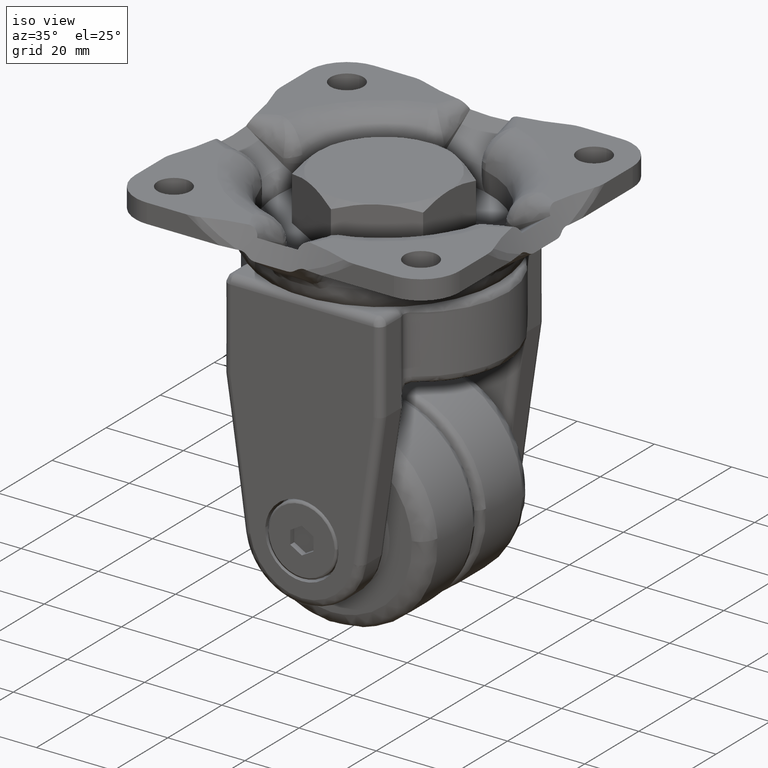
[diagram: clean part render]
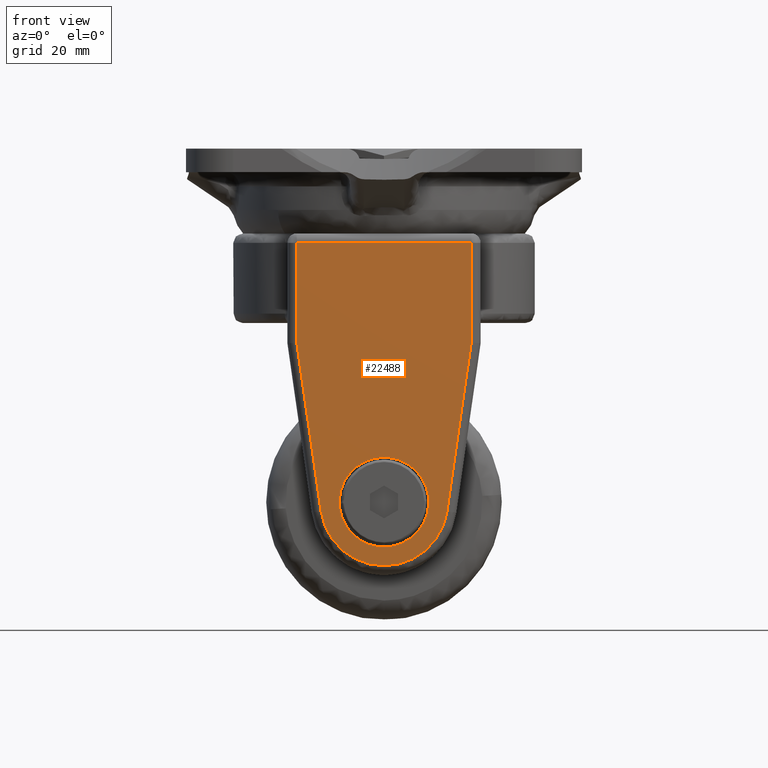
[diagram: tour spotlight — one face highlighted and labeled with its STEP entity id]
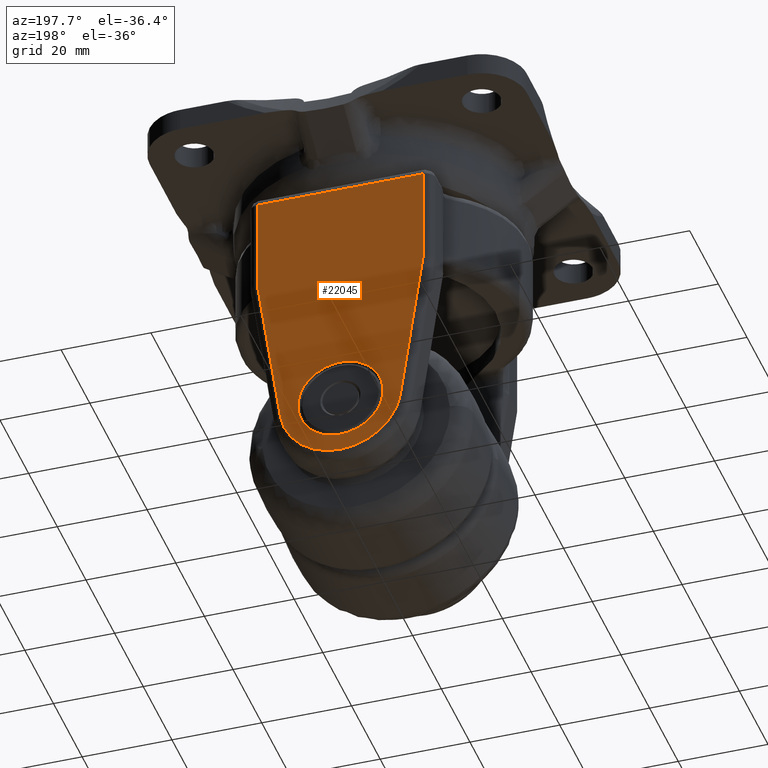
[diagram: tour spotlight — one face highlighted and labeled with its STEP entity id]
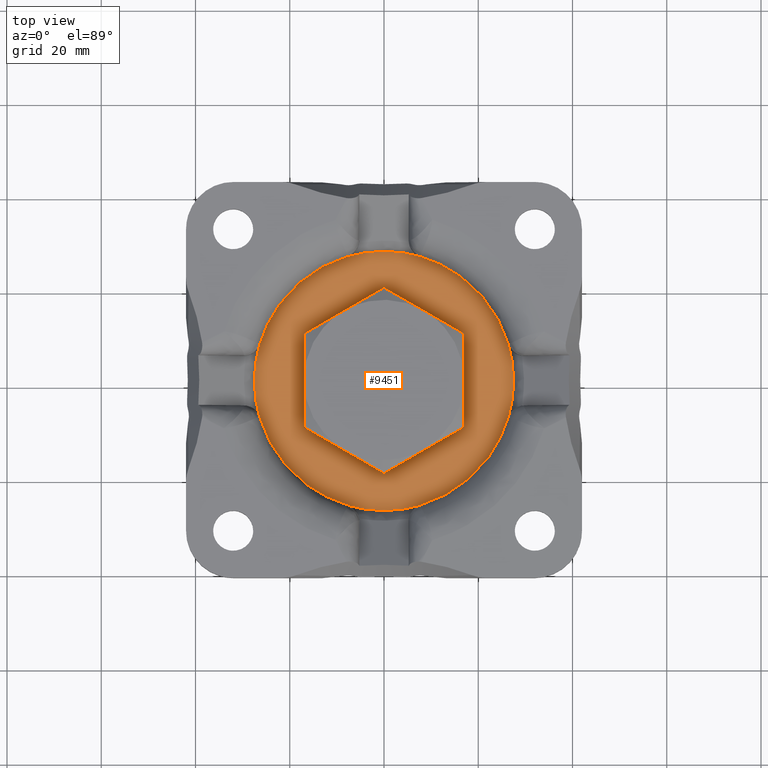
[diagram: tour spotlight — one face highlighted and labeled with its STEP entity id]
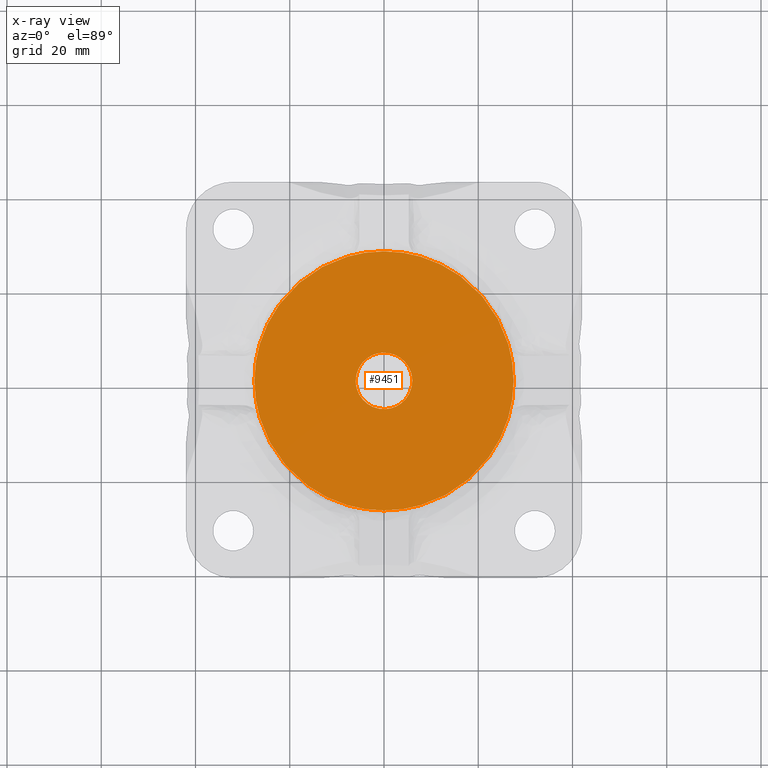
[diagram: x-ray of the same camera — body ghosted, this tour face saturated]
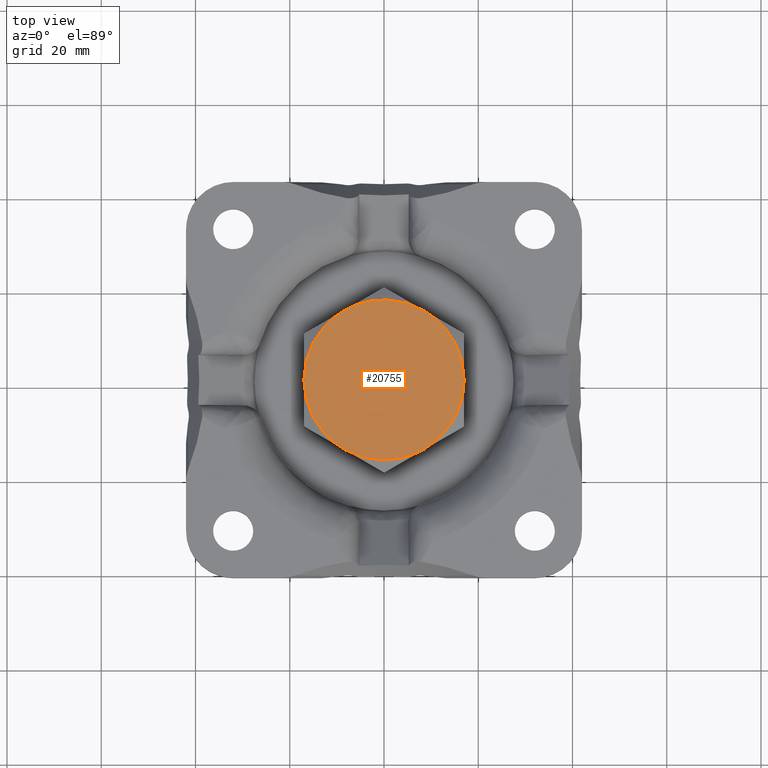
[diagram: tour spotlight — one face highlighted and labeled with its STEP entity id]
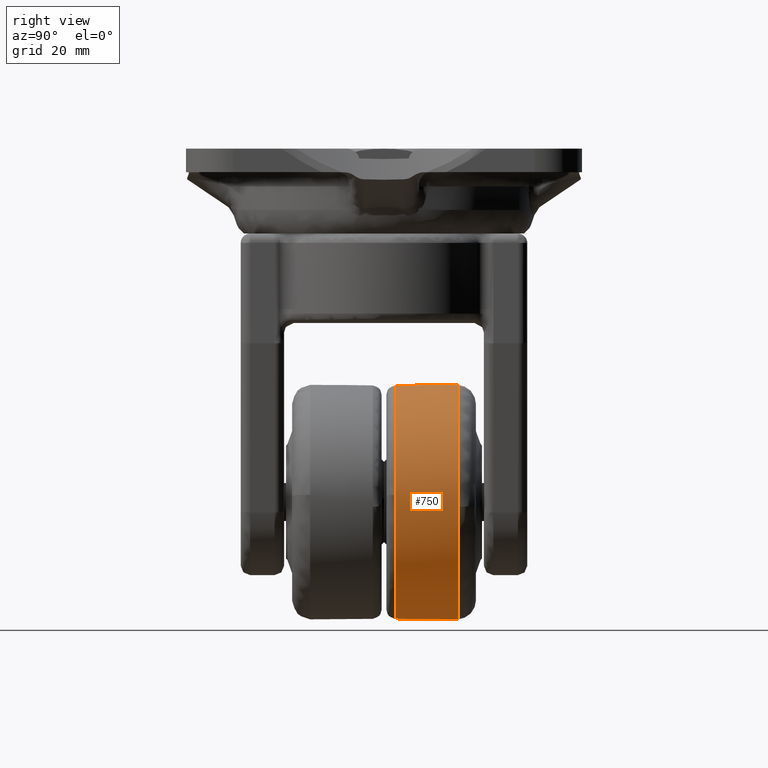
[diagram: tour spotlight — one face highlighted and labeled with its STEP entity id]
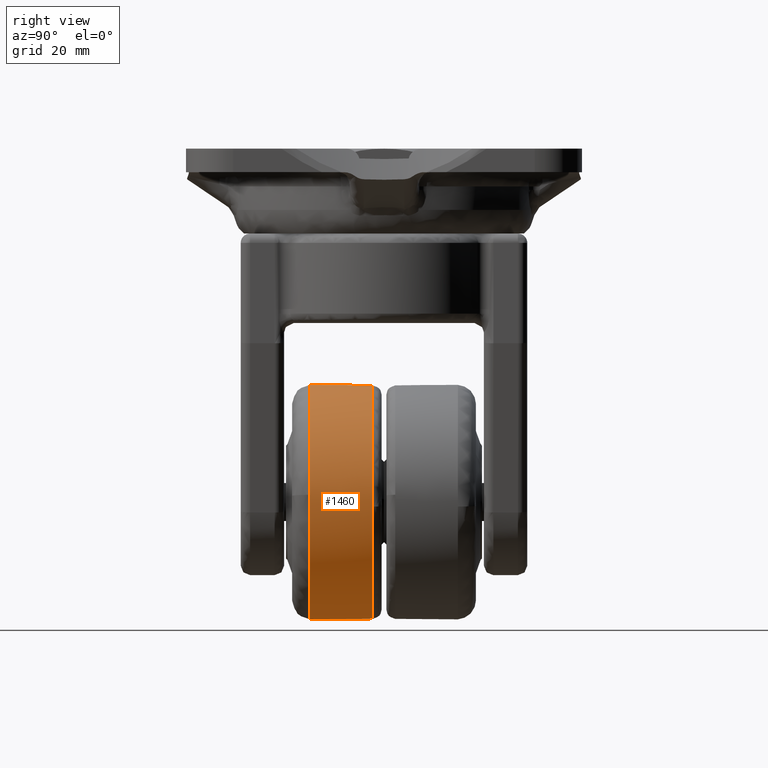
[diagram: tour spotlight — one face highlighted and labeled with its STEP entity id]
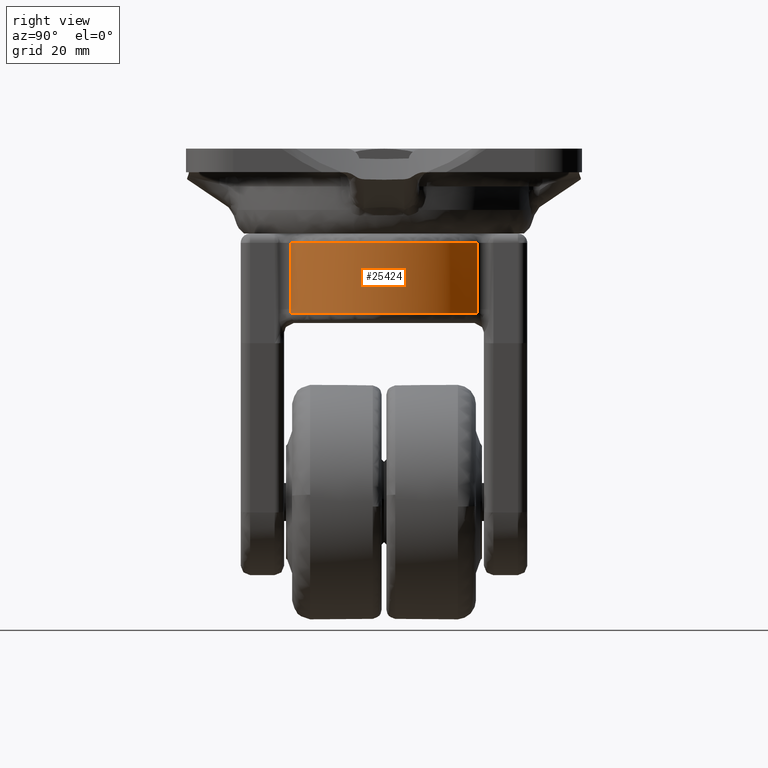
[diagram: tour spotlight — one face highlighted and labeled with its STEP entity id]
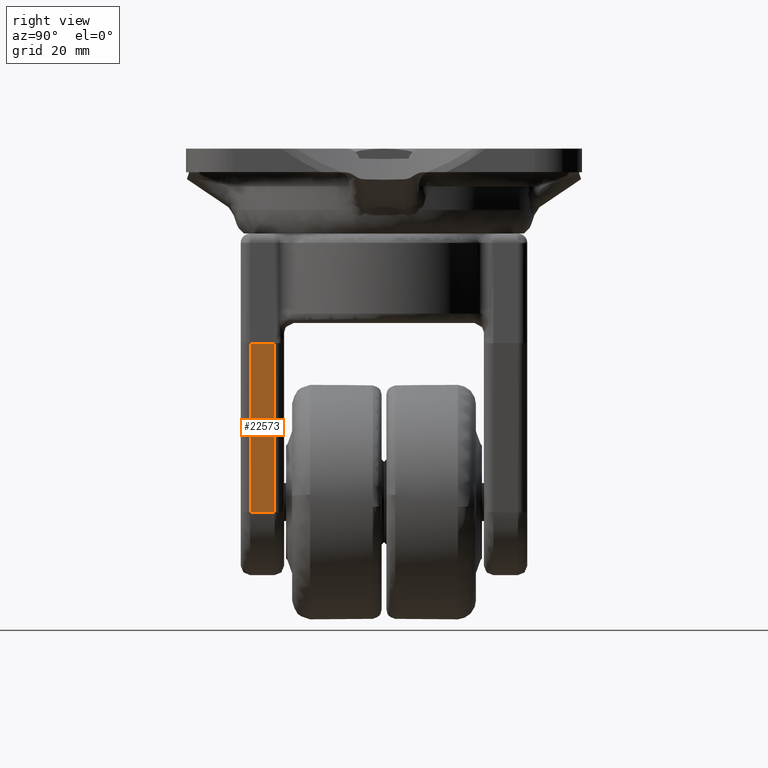
[diagram: tour spotlight — one face highlighted and labeled with its STEP entity id]
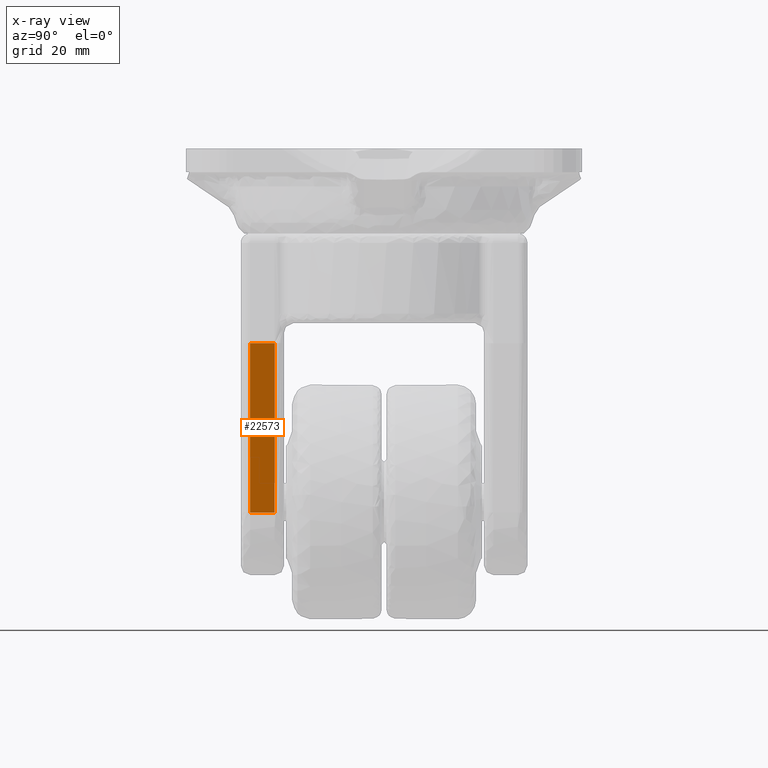
[diagram: x-ray of the same camera — body ghosted, this tour face saturated]
A machine part: a face-by-face anatomy tour. The part has 392 B-rep faces; the first image is the clean iso view, then the 8 largest visible faces are spotlighted one at a time (largest first), each with its STEP entity span.

Face 1 — front view, entity #22488. In plain terms, the highlighted face is a freeform B-spline surface patch.
Definition (entity closure, byte-faithful):
#21433=CARTESIAN_POINT('',(-9.482280584999973,-30.399999999999999,-56.420038874291961));
#21434=VERTEX_POINT('',#21433);
#21440=CARTESIAN_POINT('',(0.0,-30.399999999999999,-66.500000000000000));
#21441=VERTEX_POINT('',#21440);
#21442=CARTESIAN_POINT('',(-9.482280584999973,-30.400000000000006,-56.420038874291954));
#21443=CARTESIAN_POINT('',(-9.500000000000000,-30.399999999999999,-56.709748748599779));
#21444=CARTESIAN_POINT('',(-9.500000000000000,-30.399999999999999,-57.0));
#21445=CARTESIAN_POINT('',(-9.500000000000000,-30.400000000000002,-66.500000000000000));
#21446=CARTESIAN_POINT('',(0.0,-30.399999999999999,-66.500000000000000));
#21454=(BOUNDED_CURVE()B_SPLINE_CURVE(2,(#21442,#21443,#21444,#21445,#21446),.UNSPECIFIED.,.F.,.U.)B_SPLINE_CURVE_WITH_KNOTS((3,2,3),(0.239332962239659,0.250000000000000,0.500000000000000),.UNSPECIFIED.)CURVE()GEOMETRIC_REPRESENTATION_ITEM()RATIONAL_B_SPLINE_CURVE((0.976072041668252,0.987502787900676,1.0,0.707106781186548,1.0))REPRESENTATION_ITEM(''));
#21455=EDGE_CURVE('',#21434,#21441,#21454,.T.);
#21457=CARTESIAN_POINT('',(9.482280584999973,-30.399999999999999,-57.579961125708053));
#21458=VERTEX_POINT('',#21457);
#21459=CARTESIAN_POINT('',(0.0,-30.399999999999999,-66.500000000000000));
#21460=CARTESIAN_POINT('',(8.936707635484275,-30.400000000000006,-66.500000000000000));
#21461=CARTESIAN_POINT('',(9.482280584999973,-30.400000000000002,-57.579961125708046));
#21469=(BOUNDED_CURVE()B_SPLINE_CURVE(2,(#21459,#21460,#21461),.UNSPECIFIED.,.F.,.U.)B_SPLINE_CURVE_WITH_KNOTS((3,3),(0.500000000000000,0.739332962239659),.UNSPECIFIED.)CURVE()GEOMETRIC_REPRESENTATION_ITEM()RATIONAL_B_SPLINE_CURVE((1.0,0.719603993285871,0.976072041668253))REPRESENTATION_ITEM(''));
#21470=EDGE_CURVE('',#21441,#21458,#21469,.T.);
#21544=CARTESIAN_POINT('',(0.0,-30.399999999999999,-47.500000000000000));
#21545=VERTEX_POINT('',#21544);
#21546=CARTESIAN_POINT('',(9.482280584999973,-30.400000000000002,-57.579961125708046));
#21547=CARTESIAN_POINT('',(9.500000000000000,-30.399999999999999,-57.290251251400235));
#21548=CARTESIAN_POINT('',(9.500000000000000,-30.399999999999999,-57.0));
#21549=CARTESIAN_POINT('',(9.500000000000000,-30.400000000000002,-47.500000000000021));
#21550=CARTESIAN_POINT('',(0.0,-30.399999999999999,-47.500000000000000));
#21558=(BOUNDED_CURVE()B_SPLINE_CURVE(2,(#21546,#21547,#21548,#21549,#21550),.UNSPECIFIED.,.F.,.U.)B_SPLINE_CURVE_WITH_KNOTS((3,2,3),(0.739332962239659,0.750000000000000,1.0),.UNSPECIFIED.)CURVE()GEOMETRIC_REPRESENTATION_ITEM()RATIONAL_B_SPLINE_CURVE((0.976072041668253,0.987502787900676,1.0,0.707106781186548,1.0))REPRESENTATION_ITEM(''));
#21559=EDGE_CURVE('',#21458,#21545,#21558,.T.);
#21561=CARTESIAN_POINT('',(0.0,-30.399999999999999,-47.500000000000000));
#21562=CARTESIAN_POINT('',(-8.936707635484282,-30.400000000000006,-47.500000000000007));
#21563=CARTESIAN_POINT('',(-9.482280584999975,-30.400000000000002,-56.420038874291961));
#21571=(BOUNDED_CURVE()B_SPLINE_CURVE(2,(#21561,#21562,#21563),.UNSPECIFIED.,.F.,.U.)B_SPLINE_CURVE_WITH_KNOTS((3,3),(0.0,0.239332962239659),.UNSPECIFIED.)CURVE()GEOMETRIC_REPRESENTATION_ITEM()RATIONAL_B_SPLINE_CURVE((1.0,0.719603993285871,0.976072041668253))REPRESENTATION_ITEM(''));
#21572=EDGE_CURVE('',#21545,#21434,#21571,.T.);
#22202=CARTESIAN_POINT('',(-13.362911929339861,-30.399999999999999,-58.919006192982799));
#22203=VERTEX_POINT('',#22202);
#22244=CARTESIAN_POINT('',(13.362911337943199,-30.399999999999999,-58.919005827018402));
#22245=VERTEX_POINT('',#22244);
#22258=CARTESIAN_POINT('',(-13.362911929339861,-30.399999999999999,-58.919006192982799));
#22259=CARTESIAN_POINT('',(-13.277284070909429,-30.399999999999999,-59.515390440792132));
#22260=CARTESIAN_POINT('',(-13.005079465459920,-30.400000000000009,-60.795104566045516));
#22261=CARTESIAN_POINT('',(-12.288132023414800,-30.400000000000041,-62.731484347039782));
#22262=CARTESIAN_POINT('',(-11.193506415781879,-30.399999999999750,-64.659358391074235));
#22263=CARTESIAN_POINT('',(-9.920296175575698,-30.400000000000439,-66.221670475484018));
#22264=CARTESIAN_POINT('',(-8.445140976753981,-30.399999999999650,-67.589178898845816));
#22265=CARTESIAN_POINT('',(-6.832385092351670,-30.400000000000251,-68.711825402179542));
#22266=CARTESIAN_POINT('',(-5.060606451657505,-30.399999999999689,-69.559571381546888));
#22267=CARTESIAN_POINT('',(-3.242184546075292,-30.400000000000290,-70.146863130434795));
#22268=CARTESIAN_POINT('',(-1.111073878592253,-30.399999999999821,-70.531557047370271));
#22269=CARTESIAN_POINT('',(1.413430600965660,-30.400000000000031,-70.517498543353454));
#22270=CARTESIAN_POINT('',(3.931009766868261,-30.400000000000091,-69.990245824681139));
#22271=CARTESIAN_POINT('',(6.032403659665533,-30.399999999999920,-69.138808214010979));
#22272=CARTESIAN_POINT('',(8.103636833635006,-30.399999999998698,-67.894178247186801));
#22273=CARTESIAN_POINT('',(9.805013872387882,-30.400000000000560,-66.386199071967724));
#22274=CARTESIAN_POINT('',(11.050132116390740,-30.399999999999881,-64.804582130697966));
#22275=CARTESIAN_POINT('',(11.977810502746561,-30.399999999999700,-63.310007474792570));
#22276=CARTESIAN_POINT('',(12.833607229364979,-30.400000000001231,-61.429838149025443));
#22277=CARTESIAN_POINT('',(13.234576658400581,-30.399999999998531,-59.813599457235853));
#22278=CARTESIAN_POINT('',(13.362911337943199,-30.399999999999999,-58.919005827018402));
#22279=B_SPLINE_CURVE_WITH_KNOTS('',3,(#22258,#22259,#22260,#22261,#22262,#22263,#22264,#22265,#22266,#22267,#22268,#22269,#22270,#22271,#22272,#22273,#22274,#22275,#22276,#22277,#22278),.UNSPECIFIED.,.F.,.U.,(4,1,1,1,1,1,1,1,1,1,1,1,1,1,1,1,1,1,4),(-0.000000275676690,1.807509145236260,3.916259867591208,6.175719531618867,8.435134206208041,9.941420602146454,12.200855889788309,14.309654795475391,15.815945949407650,17.924682503947999,20.786547186613522,23.347216944522589,25.606660609047200,27.564825195223069,30.577403980200760,32.384941288696268,33.589982616414567,35.849410919636711,38.560644470369631),.UNSPECIFIED.);
#22280=EDGE_CURVE('',#22203,#22245,#22279,.T.);
#22301=CARTESIAN_POINT('',(18.500000000000000,-30.399999999999999,-23.147121216816199));
#22302=VERTEX_POINT('',#22301);
#22316=CARTESIAN_POINT('',(13.362911337943199,-30.399999999999999,-58.919005827018402));
#22317=CARTESIAN_POINT('',(18.500000000000000,-30.399999999999999,-23.147121216816199));
#22318=QUASI_UNIFORM_CURVE('',1,(#22316,#22317),.UNSPECIFIED.,.F.,.U.);
#22319=EDGE_CURVE('',#22245,#22302,#22318,.T.);
#22344=CARTESIAN_POINT('',(-18.500000000000000,-30.399999999999999,-23.147128180271000));
#22345=VERTEX_POINT('',#22344);
#22367=CARTESIAN_POINT('',(-18.500000000000000,-30.399999999999999,-23.147128180271000));
#22368=CARTESIAN_POINT('',(-13.362911929339861,-30.399999999999999,-58.919006192982799));
#22369=QUASI_UNIFORM_CURVE('',1,(#22367,#22368),.UNSPECIFIED.,.F.,.U.);
#22370=EDGE_CURVE('',#22345,#22203,#22369,.T.);
#22396=CARTESIAN_POINT('',(18.500000000000000,-30.399999999999999,-2.0));
#22397=VERTEX_POINT('',#22396);
#22411=CARTESIAN_POINT('',(18.500000000000000,-30.399999999999999,-23.147121216816199));
#22412=CARTESIAN_POINT('',(18.500000000000000,-30.399999999999999,-2.0));
#22413=QUASI_UNIFORM_CURVE('',1,(#22411,#22412),.UNSPECIFIED.,.F.,.U.);
#22414=EDGE_CURVE('',#22302,#22397,#22413,.T.);
#22434=CARTESIAN_POINT('',(-18.500000000000000,-30.399999999999999,-2.0));
#22435=VERTEX_POINT('',#22434);
#22436=CARTESIAN_POINT('',(-18.500000000000000,-30.399999999999999,-2.0));
#22437=CARTESIAN_POINT('',(-18.500000000000000,-30.399999999999999,-23.147128180271000));
#22438=QUASI_UNIFORM_CURVE('',1,(#22436,#22437),.UNSPECIFIED.,.F.,.U.);
#22439=EDGE_CURVE('',#22435,#22345,#22438,.T.);
#22465=CARTESIAN_POINT('',(-20.348149928286830,-30.399999999999999,-73.921574867233574));
#22466=CARTESIAN_POINT('',(20.348150920704160,-30.399999999999999,-73.921574867233574));
#22467=CARTESIAN_POINT('',(-20.348149928286830,-30.399999999999999,1.421576704546877));
#22468=CARTESIAN_POINT('',(20.348150920704160,-30.399999999999999,1.421576704546877));
#22469=B_SPLINE_SURFACE_WITH_KNOTS('',1,1,((#22465,#22467),(#22466,#22468)),.UNSPECIFIED.,.F.,.F.,.U.,(2,2),(2,2),(0.0,40.696300848990987),(0.0,75.343151571780453),.UNSPECIFIED.);
#22470=ORIENTED_EDGE('',*,*,#22414,.T.);
#22471=CARTESIAN_POINT('',(18.500000000000000,-30.399999999999999,-2.0));
#22472=CARTESIAN_POINT('',(-18.500000000000000,-30.399999999999999,-2.0));
#22473=QUASI_UNIFORM_CURVE('',1,(#22471,#22472),.UNSPECIFIED.,.F.,.U.);
#22474=EDGE_CURVE('',#22397,#22435,#22473,.T.);
#22475=ORIENTED_EDGE('',*,*,#22474,.T.);
#22476=ORIENTED_EDGE('',*,*,#22439,.T.);
#22477=ORIENTED_EDGE('',*,*,#22370,.T.);
#22478=ORIENTED_EDGE('',*,*,#22280,.T.);
#22479=ORIENTED_EDGE('',*,*,#22319,.T.);
#22480=EDGE_LOOP('',(#22470,#22475,#22476,#22477,#22478,#22479));
#22481=FACE_OUTER_BOUND('',#22480,.T.);
#22482=ORIENTED_EDGE('',*,*,#21470,.F.);
#22483=ORIENTED_EDGE('',*,*,#21455,.F.);
#22484=ORIENTED_EDGE('',*,*,#21572,.F.);
#22485=ORIENTED_EDGE('',*,*,#21559,.F.);
#22486=EDGE_LOOP('',(#22482,#22483,#22484,#22485));
#22487=FACE_BOUND('',#22486,.T.);
#22488=ADVANCED_FACE('',(#22481,#22487),#22469,.T.);

Face 2 — auxiliary view, entity #22045. In plain terms, the highlighted face is a freeform B-spline surface patch.
Definition (entity closure, byte-faithful):
#21249=CARTESIAN_POINT('',(-9.470714954299758,30.399999999999999,-56.254642197069202));
#21250=VERTEX_POINT('',#21249);
#21256=CARTESIAN_POINT('',(0.0,30.399999999999999,-47.500000000000000));
#21257=VERTEX_POINT('',#21256);
#21258=CARTESIAN_POINT('',(0.0,30.399999999999999,-47.500000000000000));
#21259=CARTESIAN_POINT('',(-8.781713025201796,30.399999999999995,-47.500000000000036));
#21260=CARTESIAN_POINT('',(-9.470714954299758,30.400000000000002,-56.254642197069209));
#21268=(BOUNDED_CURVE()B_SPLINE_CURVE(2,(#21258,#21259,#21260),.UNSPECIFIED.,.F.,.U.)B_SPLINE_CURVE_WITH_KNOTS((3,3),(0.0,0.236331365911859),.UNSPECIFIED.)CURVE()GEOMETRIC_REPRESENTATION_ITEM()RATIONAL_B_SPLINE_CURVE((1.0,0.723120582125983,0.969723492404342))REPRESENTATION_ITEM(''));
#21269=EDGE_CURVE('',#21257,#21250,#21268,.T.);
#21271=CARTESIAN_POINT('',(9.470714954299757,30.399999999999999,-57.745357802930798));
#21272=VERTEX_POINT('',#21271);
#21273=CARTESIAN_POINT('',(9.470714954299757,30.400000000000002,-57.745357802930798));
#21274=CARTESIAN_POINT('',(9.499999999999325,30.400000000000006,-57.373254204962734));
#21275=CARTESIAN_POINT('',(9.499999999999339,30.399999999999999,-56.999999999999950));
#21276=CARTESIAN_POINT('',(9.499999999999682,30.400000000000002,-47.499999999999986));
#21277=CARTESIAN_POINT('',(0.0,30.399999999999999,-47.500000000000000));
#21285=(BOUNDED_CURVE()B_SPLINE_CURVE(2,(#21273,#21274,#21275,#21276,#21277),.UNSPECIFIED.,.F.,.U.)B_SPLINE_CURVE_WITH_KNOTS((3,2,3),(0.736331365911859,0.750000000000000,1.0),.UNSPECIFIED.)CURVE()GEOMETRIC_REPRESENTATION_ITEM()RATIONAL_B_SPLINE_CURVE((0.969723492404342,0.983986199060565,1.0,0.707106781186548,1.0))REPRESENTATION_ITEM(''));
#21286=EDGE_CURVE('',#21272,#21257,#21285,.T.);
#21362=CARTESIAN_POINT('',(0.0,30.399999999999999,-66.500000000000000));
#21363=VERTEX_POINT('',#21362);
#21364=CARTESIAN_POINT('',(0.0,30.399999999999999,-66.500000000000000));
#21365=CARTESIAN_POINT('',(8.781713025201793,30.399999999999995,-66.499999999999986));
#21366=CARTESIAN_POINT('',(9.470714954299757,30.400000000000002,-57.745357802930798));
#21374=(BOUNDED_CURVE()B_SPLINE_CURVE(2,(#21364,#21365,#21366),.UNSPECIFIED.,.F.,.U.)B_SPLINE_CURVE_WITH_KNOTS((3,3),(0.500000000000000,0.736331365911859),.UNSPECIFIED.)CURVE()GEOMETRIC_REPRESENTATION_ITEM()RATIONAL_B_SPLINE_CURVE((1.0,0.723120582125983,0.969723492404342))REPRESENTATION_ITEM(''));
#21375=EDGE_CURVE('',#21363,#21272,#21374,.T.);
#21377=CARTESIAN_POINT('',(-9.470714954299758,30.399999999999999,-56.254642197069202));
#21378=CARTESIAN_POINT('',(-9.499999999999325,30.399999999999999,-56.626745795037280));
#21379=CARTESIAN_POINT('',(-9.499999999999339,30.399999999999999,-57.000000000000057));
#21380=CARTESIAN_POINT('',(-9.499999999999682,30.400000000000002,-66.500000000000043));
#21381=CARTESIAN_POINT('',(0.0,30.399999999999999,-66.500000000000000));
#21389=(BOUNDED_CURVE()B_SPLINE_CURVE(2,(#21377,#21378,#21379,#21380,#21381),.UNSPECIFIED.,.F.,.U.)B_SPLINE_CURVE_WITH_KNOTS((3,2,3),(0.236331365911859,0.250000000000000,0.500000000000000),.UNSPECIFIED.)CURVE()GEOMETRIC_REPRESENTATION_ITEM()RATIONAL_B_SPLINE_CURVE((0.969723492404341,0.983986199060565,1.0,0.707106781186548,1.0))REPRESENTATION_ITEM(''));
#21390=EDGE_CURVE('',#21250,#21363,#21389,.T.);
#21748=CARTESIAN_POINT('',(18.500000000000000,30.399999999999999,-23.147121216816199));
#21749=VERTEX_POINT('',#21748);
#21772=CARTESIAN_POINT('',(13.362911971980701,30.399999999999999,-58.919005896055303));
#21773=VERTEX_POINT('',#21772);
#21787=CARTESIAN_POINT('',(18.500000000000000,30.399999999999999,-23.147121216816199));
#21788=CARTESIAN_POINT('',(13.362911971980701,30.399999999999999,-58.919005896055303));
#21789=QUASI_UNIFORM_CURVE('',1,(#21787,#21788),.UNSPECIFIED.,.F.,.U.);
#21790=EDGE_CURVE('',#21749,#21773,#21789,.T.);
#21820=CARTESIAN_POINT('',(-13.362912278193900,30.399999999999999,-58.919006243080602));
#21821=VERTEX_POINT('',#21820);
#21834=CARTESIAN_POINT('',(13.362911971980701,30.399999999999999,-58.919005896055303));
#21835=CARTESIAN_POINT('',(13.277284853595811,30.399999999999959,-59.515389489699167));
#21836=CARTESIAN_POINT('',(13.005069296882430,30.400000000000080,-60.795097909533482));
#21837=CARTESIAN_POINT('',(12.218266633255229,30.399999999999910,-62.920443430163751));
#21838=CARTESIAN_POINT('',(10.974867152295520,30.400000000000190,-65.000768887215784));
#21839=CARTESIAN_POINT('',(9.398361644936994,30.399999999999821,-66.767882062652745));
#21840=CARTESIAN_POINT('',(7.762571879452167,30.400000000000102,-68.107518874055287));
#21841=CARTESIAN_POINT('',(6.246679447901028,30.399999999999981,-69.007036349653831));
#21842=CARTESIAN_POINT('',(4.589344145072675,30.400000000000020,-69.732964344344794));
#21843=CARTESIAN_POINT('',(2.948575821247694,30.399999999999899,-70.222746287413443));
#21844=CARTESIAN_POINT('',(1.006664277679348,30.400000000000169,-70.506393095935891));
#21845=CARTESIAN_POINT('',(-1.107623114799209,30.400000000000070,-70.518265986783135));
#21846=CARTESIAN_POINT('',(-3.098661101522709,30.400000000000059,-70.193308783802365));
#21847=CARTESIAN_POINT('',(-4.917061679215832,30.400000000000031,-69.605888358151859));
#21848=CARTESIAN_POINT('',(-6.563473984748552,30.399999999999110,-68.851724496156422));
#21849=CARTESIAN_POINT('',(-8.509091315671377,30.400000000001022,-67.592146501339727));
#21850=CARTESIAN_POINT('',(-10.286499651818239,30.399999999999299,-65.869015119318888));
#21851=CARTESIAN_POINT('',(-11.818396992735019,30.400000000001029,-63.683066214510028));
#21852=CARTESIAN_POINT('',(-12.843270640017041,30.399999999997050,-61.431272538358868));
#21853=CARTESIAN_POINT('',(-13.248782826365501,30.400000000003331,-59.714181916608872));
#21854=CARTESIAN_POINT('',(-13.362912278193900,30.399999999999999,-58.919006243080602));
#21855=B_SPLINE_CURVE_WITH_KNOTS('',3,(#21834,#21835,#21836,#21837,#21838,#21839,#21840,#21841,#21842,#21843,#21844,#21845,#21846,#21847,#21848,#21849,#21850,#21851,#21852,#21853,#21854),.UNSPECIFIED.,.F.,.U.,(4,1,1,1,1,1,1,1,1,1,1,1,1,1,1,1,1,1,4),(0.000000192714516,1.807509592564223,3.916260290344731,6.778211744688537,9.037650039887105,10.995824991266250,13.104599019237259,14.309655097114030,16.418458628453330,18.225934493452691,20.184062746139549,22.744752339601391,24.251012957687561,25.907924955797039,28.167340832221619,31.179901664003470,33.288721246527132,36.150661319419832,38.560644494922080),.UNSPECIFIED.);
#21856=EDGE_CURVE('',#21773,#21821,#21855,.T.);
#21901=CARTESIAN_POINT('',(18.500000000000000,30.399999999999999,-2.0));
#21902=VERTEX_POINT('',#21901);
#21903=CARTESIAN_POINT('',(18.500000000000000,30.399999999999999,-2.0));
#21904=CARTESIAN_POINT('',(18.500000000000000,30.399999999999999,-23.147121216816199));
#21905=QUASI_UNIFORM_CURVE('',1,(#21903,#21904),.UNSPECIFIED.,.F.,.U.);
#21906=EDGE_CURVE('',#21902,#21749,#21905,.T.);
#21948=CARTESIAN_POINT('',(-18.500000000000000,30.399999999999999,-23.147128180271000));
#21949=VERTEX_POINT('',#21948);
#21963=CARTESIAN_POINT('',(-13.362912278193900,30.399999999999999,-58.919006243080602));
#21964=CARTESIAN_POINT('',(-18.500000000000000,30.399999999999999,-23.147128180271000));
#21965=QUASI_UNIFORM_CURVE('',1,(#21963,#21964),.UNSPECIFIED.,.F.,.U.);
#21966=EDGE_CURVE('',#21821,#21949,#21965,.T.);
#21998=CARTESIAN_POINT('',(-18.500000000000000,30.399999999999999,-2.0));
#21999=VERTEX_POINT('',#21998);
#22013=CARTESIAN_POINT('',(-18.500000000000000,30.399999999999999,-23.147128180271000));
#22014=CARTESIAN_POINT('',(-18.500000000000000,30.399999999999999,-2.0));
#22015=QUASI_UNIFORM_CURVE('',1,(#22013,#22014),.UNSPECIFIED.,.F.,.U.);
#22016=EDGE_CURVE('',#21949,#21999,#22015,.T.);
#22022=CARTESIAN_POINT('',(-20.348149928286830,30.399999999999999,1.421574867233707));
#22023=CARTESIAN_POINT('',(20.348150920704160,30.399999999999999,1.421574867233707));
#22024=CARTESIAN_POINT('',(-20.348149928286830,30.399999999999999,-73.921576704546794));
#22025=CARTESIAN_POINT('',(20.348150920704160,30.399999999999999,-73.921576704546794));
#22026=B_SPLINE_SURFACE_WITH_KNOTS('',1,1,((#22022,#22024),(#22023,#22025)),.UNSPECIFIED.,.F.,.F.,.U.,(2,2),(2,2),(0.0,40.696300848990987),(0.0,75.343151571780496),.UNSPECIFIED.);
#22027=ORIENTED_EDGE('',*,*,#22016,.T.);
#22028=CARTESIAN_POINT('',(-18.500000000000000,30.399999999999999,-2.0));
#22029=CARTESIAN_POINT('',(18.500000000000000,30.399999999999999,-2.0));
#22030=QUASI_UNIFORM_CURVE('',1,(#22028,#22029),.UNSPECIFIED.,.F.,.U.);
#22031=EDGE_CURVE('',#21999,#21902,#22030,.T.);
#22032=ORIENTED_EDGE('',*,*,#22031,.T.);
#22033=ORIENTED_EDGE('',*,*,#21906,.T.);
#22034=ORIENTED_EDGE('',*,*,#21790,.T.);
#22035=ORIENTED_EDGE('',*,*,#21856,.T.);
#22036=ORIENTED_EDGE('',*,*,#21966,.T.);
#22037=EDGE_LOOP('',(#22027,#22032,#22033,#22034,#22035,#22036));
#22038=FACE_OUTER_BOUND('',#22037,.T.);
#22039=ORIENTED_EDGE('',*,*,#21375,.T.);
#22040=ORIENTED_EDGE('',*,*,#21286,.T.);
#22041=ORIENTED_EDGE('',*,*,#21269,.T.);
#22042=ORIENTED_EDGE('',*,*,#21390,.T.);
#22043=EDGE_LOOP('',(#22039,#22040,#22041,#22042));
#22044=FACE_BOUND('',#22043,.T.);
#22045=ADVANCED_FACE('',(#22038,#22044),#22026,.T.);

Face 3 — top view, entity #9451. An x-ray twin of the same camera follows (body ghosted, this face saturated) — the face is partly hidden behind the body. In plain terms, the highlighted face is a freeform B-spline surface patch.
Definition (entity closure, byte-faithful):
#6464=CARTESIAN_POINT('',(-26.381809143196651,7.762096774193590,5.0));
#6465=VERTEX_POINT('',#6464);
#6530=CARTESIAN_POINT('',(-26.381809143196651,-7.762096774193550,5.0));
#6531=VERTEX_POINT('',#6530);
#7500=CARTESIAN_POINT('',(-7.762096774193550,26.381809143196651,5.0));
#7501=VERTEX_POINT('',#7500);
#7560=CARTESIAN_POINT('',(7.762096774193590,26.381809143196651,5.0));
#7561=VERTEX_POINT('',#7560);
#7626=CARTESIAN_POINT('',(26.381809143196651,7.762096774193550,5.0));
#7627=VERTEX_POINT('',#7626);
#7686=CARTESIAN_POINT('',(26.381809143196651,-7.762096774193590,5.0));
#7687=VERTEX_POINT('',#7686);
#7752=CARTESIAN_POINT('',(7.762096774193550,-26.381809143196651,5.0));
#7753=VERTEX_POINT('',#7752);
#7812=CARTESIAN_POINT('',(-7.762096774193590,-26.381809143196651,5.0));
#7813=VERTEX_POINT('',#7812);
#7910=CARTESIAN_POINT('',(-4.084532264374075,-27.194973730108401,5.0));
#7911=VERTEX_POINT('',#7910);
#7912=CARTESIAN_POINT('',(-7.762096774193589,-26.381809143196630,5.0));
#7913=CARTESIAN_POINT('',(-5.951222738712934,-26.914607308515038,5.0));
#7914=CARTESIAN_POINT('',(-4.084532264374071,-27.194973730108430,5.0));
#7922=(BOUNDED_CURVE()B_SPLINE_CURVE(2,(#7912,#7913,#7914),.UNSPECIFIED.,.F.,.U.)CURVE()GEOMETRIC_REPRESENTATION_ITEM()QUASI_UNIFORM_CURVE()RATIONAL_B_SPLINE_CURVE((1.0,0.997652497944439,1.0))REPRESENTATION_ITEM(''));
#7923=EDGE_CURVE('',#7813,#7911,#7922,.T.);
#8035=CARTESIAN_POINT('',(4.084532264374075,-27.194973730108401,5.0));
#8036=VERTEX_POINT('',#8035);
#8118=CARTESIAN_POINT('',(4.084532264374091,-27.194973730108419,5.0));
#8119=CARTESIAN_POINT('',(5.951222738712929,-26.914607308515038,5.0));
#8120=CARTESIAN_POINT('',(7.762096774193563,-26.381809143196641,5.0));
#8128=(BOUNDED_CURVE()B_SPLINE_CURVE(2,(#8118,#8119,#8120),.UNSPECIFIED.,.F.,.U.)CURVE()GEOMETRIC_REPRESENTATION_ITEM()QUASI_UNIFORM_CURVE()RATIONAL_B_SPLINE_CURVE((1.0,0.997652497944439,1.0))REPRESENTATION_ITEM(''));
#8129=EDGE_CURVE('',#8036,#7753,#8128,.T.);
#8183=CARTESIAN_POINT('',(4.084532264374075,27.194973730108401,5.0));
#8184=VERTEX_POINT('',#8183);
#8185=CARTESIAN_POINT('',(7.762096774193592,26.381809143196630,5.0));
#8186=CARTESIAN_POINT('',(5.951222738712973,26.914607308515023,5.000000000000001));
#8187=CARTESIAN_POINT('',(4.084532264374098,27.194973730108419,5.0));
#8195=(BOUNDED_CURVE()B_SPLINE_CURVE(2,(#8185,#8186,#8187),.UNSPECIFIED.,.F.,.U.)CURVE()GEOMETRIC_REPRESENTATION_ITEM()QUASI_UNIFORM_CURVE()RATIONAL_B_SPLINE_CURVE((1.0,0.997652497944439,1.0))REPRESENTATION_ITEM(''));
#8196=EDGE_CURVE('',#7561,#8184,#8195,.T.);
#8308=CARTESIAN_POINT('',(-4.084532264374075,27.194973730108401,5.0));
#8309=VERTEX_POINT('',#8308);
#8391=CARTESIAN_POINT('',(-4.084532264374063,27.194973730108430,5.0));
#8392=CARTESIAN_POINT('',(-5.951222738712897,26.914607308515045,5.000000000000001));
#8393=CARTESIAN_POINT('',(-7.762096774193536,26.381809143196651,5.0));
#8401=(BOUNDED_CURVE()B_SPLINE_CURVE(2,(#8391,#8392,#8393),.UNSPECIFIED.,.F.,.U.)CURVE()GEOMETRIC_REPRESENTATION_ITEM()QUASI_UNIFORM_CURVE()RATIONAL_B_SPLINE_CURVE((1.0,0.997652497944439,1.0))REPRESENTATION_ITEM(''));
#8402=EDGE_CURVE('',#8309,#7501,#8401,.T.);
#8456=CARTESIAN_POINT('',(27.194973730108401,-4.084532264374075,5.0));
#8457=VERTEX_POINT('',#8456);
#8458=CARTESIAN_POINT('',(26.381809143196630,-7.762096774193591,5.0));
#8459=CARTESIAN_POINT('',(26.914607308515038,-5.951222738712938,5.0));
#8460=CARTESIAN_POINT('',(27.194973730108430,-4.084532264374072,5.0));
#8468=(BOUNDED_CURVE()B_SPLINE_CURVE(2,(#8458,#8459,#8460),.UNSPECIFIED.,.F.,.U.)CURVE()GEOMETRIC_REPRESENTATION_ITEM()QUASI_UNIFORM_CURVE()RATIONAL_B_SPLINE_CURVE((1.0,0.997652497944439,1.0))REPRESENTATION_ITEM(''));
#8469=EDGE_CURVE('',#7687,#8457,#8468,.T.);
#8581=CARTESIAN_POINT('',(27.194973730108401,4.084532264374075,5.0));
#8582=VERTEX_POINT('',#8581);
#8664=CARTESIAN_POINT('',(27.194973730108430,4.084532264374066,5.0));
#8665=CARTESIAN_POINT('',(26.914607308515041,5.951222738712899,5.0));
#8666=CARTESIAN_POINT('',(26.381809143196651,7.762096774193537,5.0));
#8674=(BOUNDED_CURVE()B_SPLINE_CURVE(2,(#8664,#8665,#8666),.UNSPECIFIED.,.F.,.U.)CURVE()GEOMETRIC_REPRESENTATION_ITEM()QUASI_UNIFORM_CURVE()RATIONAL_B_SPLINE_CURVE((1.0,0.997652497944440,1.0))REPRESENTATION_ITEM(''));
#8675=EDGE_CURVE('',#8582,#7627,#8674,.T.);
#8729=CARTESIAN_POINT('',(-27.194973730108401,4.084532264374075,5.0));
#8730=VERTEX_POINT('',#8729);
#8731=CARTESIAN_POINT('',(-26.381809143196630,7.762096774193593,5.0));
#8732=CARTESIAN_POINT('',(-26.914607308515031,5.951222738712965,5.0));
#8733=CARTESIAN_POINT('',(-27.194973730108419,4.084532264374077,5.0));
#8741=(BOUNDED_CURVE()B_SPLINE_CURVE(2,(#8731,#8732,#8733),.UNSPECIFIED.,.F.,.U.)CURVE()GEOMETRIC_REPRESENTATION_ITEM()QUASI_UNIFORM_CURVE()RATIONAL_B_SPLINE_CURVE((1.0,0.997652497944439,1.0))REPRESENTATION_ITEM(''));
#8742=EDGE_CURVE('',#6465,#8730,#8741,.T.);
#8854=CARTESIAN_POINT('',(-27.194973730108401,-4.084532264374075,5.0));
#8855=VERTEX_POINT('',#8854);
#8937=CARTESIAN_POINT('',(-27.194973730108430,-4.084532264374070,5.0));
#8938=CARTESIAN_POINT('',(-26.914607308515045,-5.951222738712904,5.000000000000001));
#8939=CARTESIAN_POINT('',(-26.381809143196651,-7.762096774193539,5.0));
#8947=(BOUNDED_CURVE()B_SPLINE_CURVE(2,(#8937,#8938,#8939),.UNSPECIFIED.,.F.,.U.)CURVE()GEOMETRIC_REPRESENTATION_ITEM()QUASI_UNIFORM_CURVE()RATIONAL_B_SPLINE_CURVE((1.0,0.997652497944439,1.0))REPRESENTATION_ITEM(''));
#8948=EDGE_CURVE('',#8855,#6531,#8947,.T.);
#9006=CARTESIAN_POINT('',(-27.194973730108419,4.084532264374077,5.0));
#9007=CARTESIAN_POINT('',(-27.808447528034616,2.602085E-015,5.0));
#9008=CARTESIAN_POINT('',(-27.194973730108430,-4.084532264374063,5.0));
#9016=(BOUNDED_CURVE()B_SPLINE_CURVE(2,(#9006,#9007,#9008),.UNSPECIFIED.,.F.,.U.)CURVE()GEOMETRIC_REPRESENTATION_ITEM()QUASI_UNIFORM_CURVE()RATIONAL_B_SPLINE_CURVE((1.0,0.988908135640306,1.0))REPRESENTATION_ITEM(''));
#9017=EDGE_CURVE('',#8730,#8855,#9016,.T.);
#9151=CARTESIAN_POINT('',(-26.381809143196651,-7.762096774193539,5.0));
#9152=CARTESIAN_POINT('',(-22.148901236716057,-22.148901236716025,5.000000000000001));
#9153=CARTESIAN_POINT('',(-7.762096774193589,-26.381809143196630,5.0));
#9161=(BOUNDED_CURVE()B_SPLINE_CURVE(2,(#9151,#9152,#9153),.UNSPECIFIED.,.F.,.U.)CURVE()GEOMETRIC_REPRESENTATION_ITEM()QUASI_UNIFORM_CURVE()RATIONAL_B_SPLINE_CURVE((1.0,0.877941360377531,1.0))REPRESENTATION_ITEM(''));
#9162=EDGE_CURVE('',#6531,#7813,#9161,.T.);
#9184=CARTESIAN_POINT('',(7.762096774193563,-26.381809143196641,5.0));
#9185=CARTESIAN_POINT('',(22.148901236716025,-22.148901236716046,5.0));
#9186=CARTESIAN_POINT('',(26.381809143196630,-7.762096774193591,5.0));
#9194=(BOUNDED_CURVE()B_SPLINE_CURVE(2,(#9184,#9185,#9186),.UNSPECIFIED.,.F.,.U.)CURVE()GEOMETRIC_REPRESENTATION_ITEM()QUASI_UNIFORM_CURVE()RATIONAL_B_SPLINE_CURVE((1.0,0.877941360377531,1.0))REPRESENTATION_ITEM(''));
#9195=EDGE_CURVE('',#7753,#7687,#9194,.T.);
#9217=CARTESIAN_POINT('',(-4.084532264374071,-27.194973730108430,5.0));
#9218=CARTESIAN_POINT('',(9.540979E-015,-27.808447528034623,5.0));
#9219=CARTESIAN_POINT('',(4.084532264374091,-27.194973730108419,5.0));
#9227=(BOUNDED_CURVE()B_SPLINE_CURVE(2,(#9217,#9218,#9219),.UNSPECIFIED.,.F.,.U.)CURVE()GEOMETRIC_REPRESENTATION_ITEM()QUASI_UNIFORM_CURVE()RATIONAL_B_SPLINE_CURVE((1.0,0.988908135640306,1.0))REPRESENTATION_ITEM(''));
#9228=EDGE_CURVE('',#7911,#8036,#9227,.T.);
#9250=CARTESIAN_POINT('',(-7.762096774193536,26.381809143196651,5.0));
#9251=CARTESIAN_POINT('',(-22.148901236716029,22.148901236716060,5.0));
#9252=CARTESIAN_POINT('',(-26.381809143196630,7.762096774193593,5.0));
#9260=(BOUNDED_CURVE()B_SPLINE_CURVE(2,(#9250,#9251,#9252),.UNSPECIFIED.,.F.,.U.)CURVE()GEOMETRIC_REPRESENTATION_ITEM()QUASI_UNIFORM_CURVE()RATIONAL_B_SPLINE_CURVE((1.0,0.877941360377531,1.0))REPRESENTATION_ITEM(''));
#9261=EDGE_CURVE('',#7501,#6465,#9260,.T.);
#9281=CARTESIAN_POINT('',(4.084532264374098,27.194973730108419,5.0));
#9282=CARTESIAN_POINT('',(1.214306E-014,27.808447528034623,5.0));
#9283=CARTESIAN_POINT('',(-4.084532264374063,27.194973730108430,5.0));
#9291=(BOUNDED_CURVE()B_SPLINE_CURVE(2,(#9281,#9282,#9283),.UNSPECIFIED.,.F.,.U.)CURVE()GEOMETRIC_REPRESENTATION_ITEM()QUASI_UNIFORM_CURVE()RATIONAL_B_SPLINE_CURVE((1.0,0.988908135640306,1.0))REPRESENTATION_ITEM(''));
#9292=EDGE_CURVE('',#8184,#8309,#9291,.T.);
#9312=CARTESIAN_POINT('',(26.381809143196651,7.762096774193537,5.0));
#9313=CARTESIAN_POINT('',(22.148901236716068,22.148901236716025,5.000000000000001));
#9314=CARTESIAN_POINT('',(7.762096774193592,26.381809143196630,5.0));
#9322=(BOUNDED_CURVE()B_SPLINE_CURVE(2,(#9312,#9313,#9314),.UNSPECIFIED.,.F.,.U.)CURVE()GEOMETRIC_REPRESENTATION_ITEM()QUASI_UNIFORM_CURVE()RATIONAL_B_SPLINE_CURVE((1.0,0.877941360377531,1.0))REPRESENTATION_ITEM(''));
#9323=EDGE_CURVE('',#7627,#7561,#9322,.T.);
#9345=CARTESIAN_POINT('',(27.194973730108430,-4.084532264374072,5.0));
#9346=CARTESIAN_POINT('',(27.808447528034620,-6.071532E-015,5.0));
#9347=CARTESIAN_POINT('',(27.194973730108430,4.084532264374066,5.0));
#9355=(BOUNDED_CURVE()B_SPLINE_CURVE(2,(#9345,#9346,#9347),.UNSPECIFIED.,.F.,.U.)CURVE()GEOMETRIC_REPRESENTATION_ITEM()QUASI_UNIFORM_CURVE()RATIONAL_B_SPLINE_CURVE((1.0,0.988908135640306,1.0))REPRESENTATION_ITEM(''));
#9356=EDGE_CURVE('',#8457,#8582,#9355,.T.);
#9362=CARTESIAN_POINT('',(-30.247249893399331,30.247249893399331,5.0));
#9363=CARTESIAN_POINT('',(30.247251368614290,30.247249893399331,5.0));
#9364=CARTESIAN_POINT('',(-30.247249893399331,-30.247251368614290,5.0));
#9365=CARTESIAN_POINT('',(30.247251368614290,-30.247251368614290,5.0));
#9366=B_SPLINE_SURFACE_WITH_KNOTS('',1,1,((#9362,#9364),(#9363,#9365)),.UNSPECIFIED.,.F.,.F.,.U.,(2,2),(2,2),(0.0,60.494501262013607),(0.0,60.494501262013607),.UNSPECIFIED.);
#9367=ORIENTED_EDGE('',*,*,#8948,.T.);
#9368=ORIENTED_EDGE('',*,*,#9162,.T.);
#9369=ORIENTED_EDGE('',*,*,#7923,.T.);
#9370=ORIENTED_EDGE('',*,*,#9228,.T.);
#9371=ORIENTED_EDGE('',*,*,#8129,.T.);
#9372=ORIENTED_EDGE('',*,*,#9195,.T.);
#9373=ORIENTED_EDGE('',*,*,#8469,.T.);
#9374=ORIENTED_EDGE('',*,*,#9356,.T.);
#9375=ORIENTED_EDGE('',*,*,#8675,.T.);
#9376=ORIENTED_EDGE('',*,*,#9323,.T.);
#9377=ORIENTED_EDGE('',*,*,#8196,.T.);
#9378=ORIENTED_EDGE('',*,*,#9292,.T.);
#9379=ORIENTED_EDGE('',*,*,#8402,.T.);
#9380=ORIENTED_EDGE('',*,*,#9261,.T.);
#9381=ORIENTED_EDGE('',*,*,#8742,.T.);
#9382=ORIENTED_EDGE('',*,*,#9017,.T.);
#9383=EDGE_LOOP('',(#9367,#9368,#9369,#9370,#9371,#9372,#9373,#9374,#9375,#9376,#9377,#9378,#9379,#9380,#9381,#9382));
#9384=FACE_OUTER_BOUND('',#9383,.T.);
#9385=CARTESIAN_POINT('',(-6.0,0.0,5.0));
#9386=VERTEX_POINT('',#9385);
#9387=CARTESIAN_POINT('',(-0.470754574479687,5.981504002389904,5.0));
#9388=VERTEX_POINT('',#9387);
#9389=CARTESIAN_POINT('',(-6.0,0.0,5.0));
#9390=CARTESIAN_POINT('',(-6.000000000000001,5.546342949844495,4.999999999999999));
#9391=CARTESIAN_POINT('',(-0.470754574479688,5.981504002389905,5.000000000000001));
#9399=(BOUNDED_CURVE()B_SPLINE_CURVE(2,(#9389,#9390,#9391),.UNSPECIFIED.,.F.,.U.)B_SPLINE_CURVE_WITH_KNOTS((3,3),(0.0,0.236331300629539),.UNSPECIFIED.)CURVE()GEOMETRIC_REPRESENTATION_ITEM()RATIONAL_B_SPLINE_CURVE((1.0,0.723120658608978,0.969723356165080))REPRESENTATION_ITEM(''));
#9400=EDGE_CURVE('',#9386,#9388,#9399,.T.);
#9401=ORIENTED_EDGE('',*,*,#9400,.T.);
#9402=CARTESIAN_POINT('',(6.0,0.0,5.0));
#9403=VERTEX_POINT('',#9402);
#9404=CARTESIAN_POINT('',(-0.470754574479688,5.981504002389905,5.000000000000001));
#9405=CARTESIAN_POINT('',(-0.235740642102588,6.000000000000001,5.000000000000001));
#9406=CARTESIAN_POINT('',(0.0,6.0,5.0));
#9407=CARTESIAN_POINT('',(6.0,6.0,5.000000000000001));
#9408=CARTESIAN_POINT('',(6.0,0.0,5.0));
#9416=(BOUNDED_CURVE()B_SPLINE_CURVE(2,(#9404,#9405,#9406,#9407,#9408),.UNSPECIFIED.,.F.,.U.)B_SPLINE_CURVE_WITH_KNOTS((3,2,3),(0.236331300629539,0.250000000000000,0.500000000000000),.UNSPECIFIED.)CURVE()GEOMETRIC_REPRESENTATION_ITEM()RATIONAL_B_SPLINE_CURVE((0.969723356165080,0.983986122577569,1.0,0.707106781186548,1.0))REPRESENTATION_ITEM(''));
#9417=EDGE_CURVE('',#9388,#9403,#9416,.T.);
#9418=ORIENTED_EDGE('',*,*,#9417,.T.);
#9419=CARTESIAN_POINT('',(0.470754574479688,-5.981504002389904,5.0));
#9420=VERTEX_POINT('',#9419);
#9421=CARTESIAN_POINT('',(6.0,0.0,5.0));
#9422=CARTESIAN_POINT('',(6.000000000000001,-5.546342949844493,5.000000000000001));
#9423=CARTESIAN_POINT('',(0.470754574479689,-5.981504002389905,5.0));
#9431=(BOUNDED_CURVE()B_SPLINE_CURVE(2,(#9421,#9422,#9423),.UNSPECIFIED.,.F.,.U.)B_SPLINE_CURVE_WITH_KNOTS((3,3),(0.500000000000000,0.736331300629539),.UNSPECIFIED.)CURVE()GEOMETRIC_REPRESENTATION_ITEM()RATIONAL_B_SPLINE_CURVE((1.0,0.723120658608978,0.969723356165080))REPRESENTATION_ITEM(''));
#9432=EDGE_CURVE('',#9403,#9420,#9431,.T.);
#9433=ORIENTED_EDGE('',*,*,#9432,.T.);
#9434=CARTESIAN_POINT('',(0.470754574479689,-5.981504002389905,5.0));
#9435=CARTESIAN_POINT('',(0.235740642102589,-6.000000000000001,5.0));
#9436=CARTESIAN_POINT('',(0.0,-6.0,5.0));
#9437=CARTESIAN_POINT('',(-6.0,-6.0,5.000000000000001));
#9438=CARTESIAN_POINT('',(-6.0,0.0,5.0));
#9446=(BOUNDED_CURVE()B_SPLINE_CURVE(2,(#9434,#9435,#9436,#9437,#9438),.UNSPECIFIED.,.F.,.U.)B_SPLINE_CURVE_WITH_KNOTS((3,2,3),(0.736331300629539,0.750000000000000,1.0),.UNSPECIFIED.)CURVE()GEOMETRIC_REPRESENTATION_ITEM()RATIONAL_B_SPLINE_CURVE((0.969723356165080,0.983986122577569,1.0,0.707106781186548,1.0))REPRESENTATION_ITEM(''));
#9447=EDGE_CURVE('',#9420,#9386,#9446,.T.);
#9448=ORIENTED_EDGE('',*,*,#9447,.T.);
#9449=EDGE_LOOP('',(#9401,#9418,#9433,#9448));
#9450=FACE_BOUND('',#9449,.T.);
#9451=ADVANCED_FACE('',(#9384,#9450),#9366,.F.);

Face 4 — top view, entity #20755. In plain terms, the highlighted face is a freeform B-spline surface patch.
Definition (entity closure, byte-faithful):
#20658=CARTESIAN_POINT('',(-18.698299384151401,18.698299884151421,18.0));
#20659=CARTESIAN_POINT('',(18.698300296102449,18.698299884151421,18.0));
#20660=CARTESIAN_POINT('',(-18.698299384151412,-18.698299796102400,18.0));
#20661=CARTESIAN_POINT('',(18.698300296102449,-18.698299796102400,18.0));
#20662=B_SPLINE_SURFACE_WITH_KNOTS('',1,1,((#20658,#20660),(#20659,#20661)),.UNSPECIFIED.,.F.,.F.,.U.,(2,2),(2,2),(0.0,37.396599680253857),(0.0,37.396599680253829),.UNSPECIFIED.);
#20663=CARTESIAN_POINT('',(-16.999999500000001,0.000000500000025,18.0));
#20664=VERTEX_POINT('',#20663);
#20665=CARTESIAN_POINT('',(-8.499999375731761,14.722432147406620,18.0));
#20666=VERTEX_POINT('',#20665);
#20667=CARTESIAN_POINT('',(-16.999999500000001,0.000000500000025,18.0));
#20668=CARTESIAN_POINT('',(-16.999999500000008,9.814955075660347,17.999999999999996));
#20669=CARTESIAN_POINT('',(-8.499999375731770,14.722432147406639,18.0));
#20677=(BOUNDED_CURVE()B_SPLINE_CURVE(2,(#20667,#20668,#20669),.UNSPECIFIED.,.F.,.U.)CURVE()GEOMETRIC_REPRESENTATION_ITEM()QUASI_UNIFORM_CURVE()RATIONAL_B_SPLINE_CURVE((1.0,0.866025397429031,1.0))REPRESENTATION_ITEM(''));
#20678=EDGE_CURVE('',#20664,#20666,#20677,.T.);
#20679=ORIENTED_EDGE('',*,*,#20678,.F.);
#20680=CARTESIAN_POINT('',(-8.500000025250790,-14.722430772406581,18.0));
#20681=VERTEX_POINT('',#20680);
#20682=CARTESIAN_POINT('',(-16.999999500000001,0.000000500000025,18.0));
#20683=CARTESIAN_POINT('',(-16.999999500000005,-9.814953575660319,17.999999999999996));
#20684=CARTESIAN_POINT('',(-8.500000025250795,-14.722430772406611,18.0));
#20692=(BOUNDED_CURVE()B_SPLINE_CURVE(2,(#20682,#20683,#20684),.UNSPECIFIED.,.F.,.U.)CURVE()GEOMETRIC_REPRESENTATION_ITEM()QUASI_UNIFORM_CURVE()RATIONAL_B_SPLINE_CURVE((1.0,0.866025408458442,1.0))REPRESENTATION_ITEM(''));
#20693=EDGE_CURVE('',#20664,#20681,#20692,.T.);
#20694=ORIENTED_EDGE('',*,*,#20693,.T.);
#20695=CARTESIAN_POINT('',(8.500000025250790,-14.722430772406581,18.0));
#20696=VERTEX_POINT('',#20695);
#20697=CARTESIAN_POINT('',(-8.500000025250795,-14.722430772406611,18.0));
#20698=CARTESIAN_POINT('',(-1.734723E-015,-19.629908286985142,17.999999999999996));
#20699=CARTESIAN_POINT('',(8.500000025250794,-14.722430772406611,18.0));
#20707=(BOUNDED_CURVE()B_SPLINE_CURVE(2,(#20697,#20698,#20699),.UNSPECIFIED.,.F.,.U.)CURVE()GEOMETRIC_REPRESENTATION_ITEM()QUASI_UNIFORM_CURVE()RATIONAL_B_SPLINE_CURVE((1.0,0.866025394436431,1.0))REPRESENTATION_ITEM(''));
#20708=EDGE_CURVE('',#20681,#20696,#20707,.T.);
#20709=ORIENTED_EDGE('',*,*,#20708,.T.);
#20710=CARTESIAN_POINT('',(16.999999500000001,0.000000500000025,18.0));
#20711=VERTEX_POINT('',#20710);
#20712=CARTESIAN_POINT('',(8.500000025250794,-14.722430772406611,18.0));
#20713=CARTESIAN_POINT('',(16.999999500000008,-9.814953575660315,18.0));
#20714=CARTESIAN_POINT('',(16.999999500000001,0.000000500000025,18.0));
#20722=(BOUNDED_CURVE()B_SPLINE_CURVE(2,(#20712,#20713,#20714),.UNSPECIFIED.,.F.,.U.)CURVE()GEOMETRIC_REPRESENTATION_ITEM()QUASI_UNIFORM_CURVE()RATIONAL_B_SPLINE_CURVE((1.0,0.866025408458442,1.0))REPRESENTATION_ITEM(''));
#20723=EDGE_CURVE('',#20696,#20711,#20722,.T.);
#20724=ORIENTED_EDGE('',*,*,#20723,.T.);
#20725=CARTESIAN_POINT('',(8.499999375731761,14.722432147406620,18.0));
#20726=VERTEX_POINT('',#20725);
#20727=CARTESIAN_POINT('',(16.999999500000001,0.000000500000025,18.0));
#20728=CARTESIAN_POINT('',(16.999999500000008,9.814955075660347,17.999999999999996));
#20729=CARTESIAN_POINT('',(8.499999375731772,14.722432147406639,18.0));
#20737=(BOUNDED_CURVE()B_SPLINE_CURVE(2,(#20727,#20728,#20729),.UNSPECIFIED.,.F.,.U.)CURVE()GEOMETRIC_REPRESENTATION_ITEM()QUASI_UNIFORM_CURVE()RATIONAL_B_SPLINE_CURVE((1.0,0.866025397429031,1.0))REPRESENTATION_ITEM(''));
#20738=EDGE_CURVE('',#20711,#20726,#20737,.T.);
#20739=ORIENTED_EDGE('',*,*,#20738,.T.);
#20740=CARTESIAN_POINT('',(8.499999375731772,14.722432147406639,18.0));
#20741=CARTESIAN_POINT('',(3.469447E-015,19.629908786985226,18.000000000000007));
#20742=CARTESIAN_POINT('',(-8.499999375731766,14.722432147406639,18.0));
#20750=(BOUNDED_CURVE()B_SPLINE_CURVE(2,(#20740,#20741,#20742),.UNSPECIFIED.,.F.,.U.)CURVE()GEOMETRIC_REPRESENTATION_ITEM()QUASI_UNIFORM_CURVE()RATIONAL_B_SPLINE_CURVE((1.0,0.866025416495254,1.0))REPRESENTATION_ITEM(''));
#20751=EDGE_CURVE('',#20726,#20666,#20750,.T.);
#20752=ORIENTED_EDGE('',*,*,#20751,.T.);
#20753=EDGE_LOOP('',(#20679,#20694,#20709,#20724,#20739,#20752));
#20754=FACE_OUTER_BOUND('',#20753,.T.);
#20755=ADVANCED_FACE('',(#20754),#20662,.F.);

Face 5 — right view, entity #750. In plain terms, the highlighted face is a freeform B-spline surface patch.
Definition (entity closure, byte-faithful):
#528=CARTESIAN_POINT('',(24.718533633155161,2.378046802009913,-55.444841681361609));
#529=VERTEX_POINT('',#528);
#543=CARTESIAN_POINT('',(0.0,2.378046798316563,-32.232593344520453));
#544=VERTEX_POINT('',#543);
#545=CARTESIAN_POINT('',(0.0,2.378046798316563,-32.232593344520453));
#546=CARTESIAN_POINT('',(23.258142799950100,2.378046800157398,-32.232593346410809));
#547=CARTESIAN_POINT('',(24.718533633155158,2.378046802009913,-55.444841681361609));
#555=(BOUNDED_CURVE()B_SPLINE_CURVE(2,(#545,#546,#547),.UNSPECIFIED.,.F.,.U.)B_SPLINE_CURVE_WITH_KNOTS((3,3),(0.0,0.239031910802252),.UNSPECIFIED.)CURVE()GEOMETRIC_REPRESENTATION_ITEM()RATIONAL_B_SPLINE_CURVE((1.0,0.719956696983993,0.975427680586308))REPRESENTATION_ITEM(''));
#556=EDGE_CURVE('',#544,#529,#555,.T.);
#622=CARTESIAN_POINT('',(0.0,2.378046798341486,-81.767406655481068));
#623=VERTEX_POINT('',#622);
#637=CARTESIAN_POINT('',(24.718533633155158,2.378046802009914,-55.444841681361609));
#638=CARTESIAN_POINT('',(24.767406452659017,2.378046801955978,-56.221652897415616));
#639=CARTESIAN_POINT('',(24.767406453603279,2.378046801898520,-57.000000003666287));
#640=CARTESIAN_POINT('',(24.767406483649761,2.378046800070146,-81.767406657256259));
#641=CARTESIAN_POINT('',(0.0,2.378046798341486,-81.767406655481068));
#649=(BOUNDED_CURVE()B_SPLINE_CURVE(2,(#637,#638,#639,#640,#641),.UNSPECIFIED.,.F.,.U.)B_SPLINE_CURVE_WITH_KNOTS((3,2,3),(0.239031910802252,0.250000000000000,0.500000000000000),.UNSPECIFIED.)CURVE()GEOMETRIC_REPRESENTATION_ITEM()RATIONAL_B_SPLINE_CURVE((0.975427680586308,0.987150084202554,1.0,0.707106781186547,1.0))REPRESENTATION_ITEM(''));
#650=EDGE_CURVE('',#529,#623,#649,.T.);
#657=CARTESIAN_POINT('',(-0.694412515397339,16.345689084308866,-32.161174989327613));
#658=CARTESIAN_POINT('',(-0.704812837273018,9.027035827172830,-31.789160128712901));
#659=CARTESIAN_POINT('',(-0.691234142995725,1.715047564433124,-32.274863948198508));
#660=CARTESIAN_POINT('',(-0.349228300017195,16.345689084308869,-32.161174989327606));
#661=CARTESIAN_POINT('',(-0.354458745390431,9.027035827172830,-31.789160128712904));
#662=CARTESIAN_POINT('',(-0.347629858793830,1.715047564433124,-32.274863948198522));
#663=CARTESIAN_POINT('',(24.838825010672387,16.345689084308876,-32.161174989327613));
#664=CARTESIAN_POINT('',(25.210839871287092,9.027035827172835,-31.789160128712922));
#665=CARTESIAN_POINT('',(24.725136051801496,1.715047564433130,-32.274863948198522));
#666=CARTESIAN_POINT('',(24.838825010672384,16.345689084308876,-57.0));
#667=CARTESIAN_POINT('',(25.210839871287096,9.027035827172830,-57.0));
#668=CARTESIAN_POINT('',(24.725136051801488,1.715047564433125,-57.000000000000007));
#669=CARTESIAN_POINT('',(24.838825010672387,16.345689084308876,-81.838825010672380));
#670=CARTESIAN_POINT('',(25.210839871287092,9.027035827172835,-82.210839871287092));
#671=CARTESIAN_POINT('',(24.725136051801496,1.715047564433130,-81.725136051801513));
#672=CARTESIAN_POINT('',(-0.349228300017209,16.345689084308866,-81.838825010672380));
#673=CARTESIAN_POINT('',(-0.354458745390453,9.027035827172830,-82.210839871287121));
#674=CARTESIAN_POINT('',(-0.347629858793844,1.715047564433125,-81.725136051801499));
#675=CARTESIAN_POINT('',(-0.694412515397367,16.345689084308869,-81.838825010672394));
#676=CARTESIAN_POINT('',(-0.704812837273046,9.027035827172830,-82.210839871287121));
#677=CARTESIAN_POINT('',(-0.691234142995754,1.715047564433124,-81.725136051801499));
#685=(BOUNDED_SURFACE()B_SPLINE_SURFACE(2,2,((#657,#660,#663,#666,#669,#672,#675),(#658,#661,#664,#667,#670,#673,#676),(#659,#662,#665,#668,#671,#674,#677)),.UNSPECIFIED.,.F.,.F.,.U.)B_SPLINE_SURFACE_WITH_KNOTS((3,3),(3,1,2,1,3),(0.0,14.643632762564209),(0.0,0.828301859902916,42.243394855048848,83.658487850194788,84.486789710097739),.UNSPECIFIED.)GEOMETRIC_REPRESENTATION_ITEM()RATIONAL_B_SPLINE_SURFACE(((0.911131562356640,0.905856083316886,0.636806652289439,0.900580604277132,0.636806652289439,0.905856083316886,0.911131562356640),(0.909776886910340,0.904509251482000,0.635859844636694,0.899241616053661,0.635859844636694,0.904509251482001,0.909776886910340),(0.911546360804071,0.906268480068881,0.637096562574184,0.900990599333690,0.637096562574184,0.906268480068881,0.911546360804071)))REPRESENTATION_ITEM('')SURFACE());
#686=CARTESIAN_POINT('',(0.0,15.681820399426430,-32.129199285385930));
#687=VERTEX_POINT('',#686);
#688=CARTESIAN_POINT('',(0.0,15.681820399426423,-32.129199285385930));
#689=CARTESIAN_POINT('',(0.0,9.027178551661908,-31.826402517254873));
#690=CARTESIAN_POINT('',(0.0,2.378046798316564,-32.232593344520453));
#698=(BOUNDED_CURVE()B_SPLINE_CURVE(2,(#688,#689,#690),.UNSPECIFIED.,.F.,.U.)B_SPLINE_CURVE_WITH_KNOTS((3,3),(0.465891450377478,0.545774306454459),.UNSPECIFIED.)CURVE()GEOMETRIC_REPRESENTATION_ITEM()RATIONAL_B_SPLINE_CURVE((0.900465357262941,0.899375481918745,0.900838114852555))REPRESENTATION_ITEM(''));
#699=EDGE_CURVE('',#687,#544,#698,.T.);
#700=ORIENTED_EDGE('',*,*,#699,.T.);
#701=ORIENTED_EDGE('',*,*,#556,.T.);
#702=ORIENTED_EDGE('',*,*,#650,.T.);
#703=CARTESIAN_POINT('',(0.0,15.681820408013721,-81.870800897772213));
#704=VERTEX_POINT('',#703);
#705=CARTESIAN_POINT('',(0.0,15.681820408013728,-81.870800897772213));
#706=CARTESIAN_POINT('',(0.0,9.027178555968314,-82.173597574337123));
#707=CARTESIAN_POINT('',(0.0,2.378046798341485,-81.767406655481068));
#715=(BOUNDED_CURVE()B_SPLINE_CURVE(2,(#705,#706,#707),.UNSPECIFIED.,.F.,.U.)B_SPLINE_CURVE_WITH_KNOTS((3,3),(0.465891450375959,0.545774306454309),.UNSPECIFIED.)CURVE()GEOMETRIC_REPRESENTATION_ITEM()RATIONAL_B_SPLINE_CURVE((0.900465357262982,0.899375481918719,0.900838114852549))REPRESENTATION_ITEM(''));
#716=EDGE_CURVE('',#704,#623,#715,.T.);
#717=ORIENTED_EDGE('',*,*,#716,.F.);
#718=CARTESIAN_POINT('',(24.853129395736890,15.681820393669311,-57.937385024563149));
#719=VERTEX_POINT('',#718);
#720=CARTESIAN_POINT('',(24.853129395736897,15.681820393669312,-57.937385024563149));
#721=CARTESIAN_POINT('',(23.950433385917876,15.681820402907432,-81.870800893092024));
#722=CARTESIAN_POINT('',(0.0,15.681820408013721,-81.870800897772213));
#730=(BOUNDED_CURVE()B_SPLINE_CURVE(2,(#720,#721,#722),.UNSPECIFIED.,.F.,.U.)B_SPLINE_CURVE_WITH_KNOTS((3,3),(0.256613470834554,0.500000000000000),.UNSPECIFIED.)CURVE()GEOMETRIC_REPRESENTATION_ITEM()RATIONAL_B_SPLINE_CURVE((0.984913611920256,0.714854944227593,1.0))REPRESENTATION_ITEM(''));
#731=EDGE_CURVE('',#719,#704,#730,.T.);
#732=ORIENTED_EDGE('',*,*,#731,.F.);
#733=CARTESIAN_POINT('',(0.0,15.681820399426430,-32.129199285385930));
#734=CARTESIAN_POINT('',(24.870800905857365,15.681820394509094,-32.129199280878936));
#735=CARTESIAN_POINT('',(24.870800781770210,15.681820393696441,-57.000000082391878));
#736=CARTESIAN_POINT('',(24.870800779430940,15.681820393681122,-57.468859122034019));
#737=CARTESIAN_POINT('',(24.853129395736897,15.681820393669312,-57.937385024563149));
#745=(BOUNDED_CURVE()B_SPLINE_CURVE(2,(#733,#734,#735,#736,#737),.UNSPECIFIED.,.F.,.U.)B_SPLINE_CURVE_WITH_KNOTS((3,2,3),(0.0,0.250000000000000,0.256613470834554),.UNSPECIFIED.)CURVE()GEOMETRIC_REPRESENTATION_ITEM()RATIONAL_B_SPLINE_CURVE((1.0,0.707106781186547,1.0,0.992251836958955,0.984913611920256))REPRESENTATION_ITEM(''));
#746=EDGE_CURVE('',#687,#719,#745,.T.);
#747=ORIENTED_EDGE('',*,*,#746,.F.);
#748=EDGE_LOOP('',(#700,#701,#702,#717,#732,#747));
#749=FACE_OUTER_BOUND('',#748,.T.);
#750=ADVANCED_FACE('',(#749),#685,.T.);

Face 6 — right view, entity #1460. In plain terms, the highlighted face is a freeform B-spline surface patch.
Definition (entity closure, byte-faithful):
#1236=CARTESIAN_POINT('',(24.749808735505280,-2.378045523964001,-57.933488081122640));
#1237=VERTEX_POINT('',#1236);
#1238=CARTESIAN_POINT('',(0.0,-2.378045495276406,-81.767406839799008));
#1239=VERTEX_POINT('',#1238);
#1240=CARTESIAN_POINT('',(24.749808735505280,-2.378045523964001,-57.933488081122640));
#1241=CARTESIAN_POINT('',(23.850865536487444,-2.378045505639990,-81.767406833380676));
#1242=CARTESIAN_POINT('',(0.0,-2.378045495276406,-81.767406839799008));
#1250=(BOUNDED_CURVE()B_SPLINE_CURVE(2,(#1240,#1241,#1242),.UNSPECIFIED.,.F.,.U.)B_SPLINE_CURVE_WITH_KNOTS((3,3),(0.256613470568981,0.500000000000000),.UNSPECIFIED.)CURVE()GEOMETRIC_REPRESENTATION_ITEM()RATIONAL_B_SPLINE_CURVE((0.984913612509609,0.714854943916455,1.0))REPRESENTATION_ITEM(''));
#1251=EDGE_CURVE('',#1237,#1239,#1250,.T.);
#1330=CARTESIAN_POINT('',(0.0,-2.378045511820819,-32.232593423111673));
#1331=VERTEX_POINT('',#1330);
#1332=CARTESIAN_POINT('',(0.0,-2.378045511820819,-32.232593423111673));
#1333=CARTESIAN_POINT('',(24.767406827714161,-2.378045521800890,-32.232593416930861));
#1334=CARTESIAN_POINT('',(24.767406657543351,-2.378045523892268,-57.000000118856192));
#1335=CARTESIAN_POINT('',(24.767406654335325,-2.378045523931694,-57.466909976058311));
#1336=CARTESIAN_POINT('',(24.749808735505280,-2.378045523964001,-57.933488081122640));
#1344=(BOUNDED_CURVE()B_SPLINE_CURVE(2,(#1332,#1333,#1334,#1335,#1336),.UNSPECIFIED.,.F.,.U.)B_SPLINE_CURVE_WITH_KNOTS((3,2,3),(0.0,0.250000000000000,0.256613470568981),.UNSPECIFIED.)CURVE()GEOMETRIC_REPRESENTATION_ITEM()RATIONAL_B_SPLINE_CURVE((1.0,0.707106781186547,1.0,0.992251837270093,0.984913612509609))REPRESENTATION_ITEM(''));
#1345=EDGE_CURVE('',#1331,#1237,#1344,.T.);
#1367=CARTESIAN_POINT('',(-0.691234133802084,-1.715042613750552,-32.274864277051101));
#1368=CARTESIAN_POINT('',(-0.704812836191238,-9.027030856080547,-31.789160167407729));
#1369=CARTESIAN_POINT('',(-0.694412522442235,-16.345684126857780,-32.161174737335244));
#1370=CARTESIAN_POINT('',(-0.347629854170236,-1.715042613750552,-32.274864277051087));
#1371=CARTESIAN_POINT('',(-0.354458744846390,-9.027030856080547,-31.789160167407736));
#1372=CARTESIAN_POINT('',(-0.349228303560153,-16.345684126857766,-32.161174737335251));
#1373=CARTESIAN_POINT('',(24.725135722948924,-1.715042613750555,-32.274864277051087));
#1374=CARTESIAN_POINT('',(25.210839832592278,-9.027030856080549,-31.789160167407740));
#1375=CARTESIAN_POINT('',(24.838825262664749,-16.345684126857766,-32.161174737335251));
#1376=CARTESIAN_POINT('',(24.725135722948917,-1.715042613750552,-57.000000000000007));
#1377=CARTESIAN_POINT('',(25.210839832592260,-9.027030856080547,-57.000000000000007));
#1378=CARTESIAN_POINT('',(24.838825262664749,-16.345684126857769,-57.0));
#1379=CARTESIAN_POINT('',(24.725135722948924,-1.715042613750555,-81.725135722948920));
#1380=CARTESIAN_POINT('',(25.210839832592278,-9.027030856080549,-82.210839832592285));
#1381=CARTESIAN_POINT('',(24.838825262664749,-16.345684126857766,-81.838825262664756));
#1382=CARTESIAN_POINT('',(-0.347629854170236,-1.715042613750552,-81.725135722948906));
#1383=CARTESIAN_POINT('',(-0.354458744846397,-9.027030856080545,-82.210839832592271));
#1384=CARTESIAN_POINT('',(-0.349228303560160,-16.345684126857780,-81.838825262664756));
#1385=CARTESIAN_POINT('',(-0.691234133802091,-1.715042613750552,-81.725135722948906));
#1386=CARTESIAN_POINT('',(-0.704812836191252,-9.027030856080547,-82.210839832592256));
#1387=CARTESIAN_POINT('',(-0.694412522442235,-16.345684126857776,-81.838825262664741));
#1395=(BOUNDED_SURFACE()B_SPLINE_SURFACE(2,2,((#1367,#1370,#1373,#1376,#1379,#1382,#1385),(#1368,#1371,#1374,#1377,#1380,#1383,#1386),(#1369,#1372,#1375,#1378,#1381,#1384,#1387)),.UNSPECIFIED.,.F.,.F.,.U.)B_SPLINE_SURFACE_WITH_KNOTS((3,3),(3,1,2,1,3),(0.0,14.643632760301520),(0.0,0.828301858622881,42.243394789767073,83.658487720911253,84.486789579534147),.UNSPECIFIED.)GEOMETRIC_REPRESENTATION_ITEM()RATIONAL_B_SPLINE_SURFACE(((0.911546362004448,0.906268481262307,0.637096563413150,0.900990600520167,0.637096563413150,0.906268481262308,0.911546362004448),(0.909776887051036,0.904509251621882,0.635859844735029,0.899241616192728,0.635859844735029,0.904509251621882,0.909776887051036),(0.911131561437654,0.905856082403222,0.636806651647143,0.900580603368789,0.636806651647143,0.905856082403222,0.911131561437655)))REPRESENTATION_ITEM('')SURFACE());
#1396=CARTESIAN_POINT('',(0.0,-15.681819454892530,-32.129199242408092));
#1397=VERTEX_POINT('',#1396);
#1398=CARTESIAN_POINT('',(0.0,-2.378045511820819,-32.232593423111666));
#1399=CARTESIAN_POINT('',(0.0,-9.027177432836536,-31.826402516787073));
#1400=CARTESIAN_POINT('',(0.0,-15.681819454892535,-32.129199242408092));
#1408=(BOUNDED_CURVE()B_SPLINE_CURVE(2,(#1398,#1399,#1400),.UNSPECIFIED.,.F.,.U.)B_SPLINE_CURVE_WITH_KNOTS((3,3),(0.454225685804975,0.534108543946522),.UNSPECIFIED.)CURVE()GEOMETRIC_REPRESENTATION_ITEM()RATIONAL_B_SPLINE_CURVE((0.900838115136010,0.899375481917063,0.900465357108061))REPRESENTATION_ITEM(''));
#1409=EDGE_CURVE('',#1331,#1397,#1408,.T.);
#1410=ORIENTED_EDGE('',*,*,#1409,.T.);
#1411=CARTESIAN_POINT('',(24.821723759906131,-15.681819454067520,-55.438349508875518));
#1412=VERTEX_POINT('',#1411);
#1413=CARTESIAN_POINT('',(0.0,-15.681819454892530,-32.129199242408092));
#1414=CARTESIAN_POINT('',(23.355236356423571,-15.681819454483893,-32.129199243337162));
#1415=CARTESIAN_POINT('',(24.821723759906121,-15.681819454067520,-55.438349508875518));
#1423=(BOUNDED_CURVE()B_SPLINE_CURVE(2,(#1413,#1414,#1415),.UNSPECIFIED.,.F.,.U.)B_SPLINE_CURVE_WITH_KNOTS((3,3),(0.0,0.239031910793830),.UNSPECIFIED.)CURVE()GEOMETRIC_REPRESENTATION_ITEM()RATIONAL_B_SPLINE_CURVE((1.0,0.719956696993860,0.975427680568306))REPRESENTATION_ITEM(''));
#1424=EDGE_CURVE('',#1397,#1412,#1423,.T.);
#1425=ORIENTED_EDGE('',*,*,#1424,.T.);
#1426=CARTESIAN_POINT('',(0.0,-15.681819454876001,-81.870800757592662));
#1427=VERTEX_POINT('',#1426);
#1428=CARTESIAN_POINT('',(24.821723759906121,-15.681819454067520,-55.438349508875518));
#1429=CARTESIAN_POINT('',(24.870800603712564,-15.681819454079326,-56.218403604371368));
#1430=CARTESIAN_POINT('',(24.870800604176640,-15.681819454091899,-57.000000001801901));
#1431=CARTESIAN_POINT('',(24.870800618943807,-15.681819454492272,-81.870800758465123));
#1432=CARTESIAN_POINT('',(0.0,-15.681819454876001,-81.870800757592662));
#1440=(BOUNDED_CURVE()B_SPLINE_CURVE(2,(#1428,#1429,#1430,#1431,#1432),.UNSPECIFIED.,.F.,.U.)B_SPLINE_CURVE_WITH_KNOTS((3,2,3),(0.239031910793830,0.250000000000000,0.500000000000000),.UNSPECIFIED.)CURVE()GEOMETRIC_REPRESENTATION_ITEM()RATIONAL_B_SPLINE_CURVE((0.975427680568306,0.987150084192687,1.0,0.707106781186547,1.0))REPRESENTATION_ITEM(''));
#1441=EDGE_CURVE('',#1412,#1427,#1440,.T.);
#1442=ORIENTED_EDGE('',*,*,#1441,.T.);
#1443=CARTESIAN_POINT('',(7.105427E-015,-2.378045495276406,-81.767406839799008));
#1444=CARTESIAN_POINT('',(0.0,-9.027177424555164,-82.173597614693463));
#1445=CARTESIAN_POINT('',(0.0,-15.681819454876001,-81.870800757592662));
#1453=(BOUNDED_CURVE()B_SPLINE_CURVE(2,(#1443,#1444,#1445),.UNSPECIFIED.,.F.,.U.)B_SPLINE_CURVE_WITH_KNOTS((3,3),(0.454225685802077,0.534108543946423),.UNSPECIFIED.)CURVE()GEOMETRIC_REPRESENTATION_ITEM()RATIONAL_B_SPLINE_CURVE((0.900838115136116,0.899375481917025,0.900465357108058))REPRESENTATION_ITEM(''));
#1454=EDGE_CURVE('',#1239,#1427,#1453,.T.);
#1455=ORIENTED_EDGE('',*,*,#1454,.F.);
#1456=ORIENTED_EDGE('',*,*,#1251,.F.);
#1457=ORIENTED_EDGE('',*,*,#1345,.F.);
#1458=EDGE_LOOP('',(#1410,#1425,#1442,#1455,#1456,#1457));
#1459=FACE_OUTER_BOUND('',#1458,.T.);
#1460=ADVANCED_FACE('',(#1459),#1395,.T.);

Face 7 — right view, entity #25424. In plain terms, the highlighted face is a freeform B-spline surface patch.
Definition (entity closure, byte-faithful):
#23387=CARTESIAN_POINT('',(21.056310328072399,19.806846346806999,-17.0));
#23388=VERTEX_POINT('',#23387);
#23599=CARTESIAN_POINT('',(21.056310328072350,-19.806846346806999,-17.0));
#23600=VERTEX_POINT('',#23599);
#23807=CARTESIAN_POINT('',(21.056310328072399,19.806846346806999,-2.0));
#23808=VERTEX_POINT('',#23807);
#23822=CARTESIAN_POINT('',(21.056310328072399,19.806846346806999,-17.0));
#23823=CARTESIAN_POINT('',(21.056310328072399,19.806846346806999,-2.0));
#23824=QUASI_UNIFORM_CURVE('',1,(#23822,#23823),.UNSPECIFIED.,.F.,.U.);
#23825=EDGE_CURVE('',#23388,#23808,#23824,.T.);
#23850=CARTESIAN_POINT('',(21.056310328072350,-19.806846346806999,-2.0));
#23851=VERTEX_POINT('',#23850);
#23873=CARTESIAN_POINT('',(21.056310328072350,-19.806846346806999,-2.0));
#23874=CARTESIAN_POINT('',(21.056310328072350,-19.806846346806999,-17.0));
#23875=QUASI_UNIFORM_CURVE('',1,(#23873,#23874),.UNSPECIFIED.,.F.,.U.);
#23876=EDGE_CURVE('',#23851,#23600,#23875,.T.);
#24226=CARTESIAN_POINT('',(21.056310328072399,19.806846346806999,-2.0));
#24227=CARTESIAN_POINT('',(22.514542495304081,18.890450627402089,-2.000000000000002));
#24228=CARTESIAN_POINT('',(24.451894199258650,17.349708699334379,-2.000000000000005));
#24229=CARTESIAN_POINT('',(27.154936216854871,14.397683771560869,-1.999999999999988));
#24230=CARTESIAN_POINT('',(29.027056390364201,11.634562123376220,-2.000000000000020));
#24231=CARTESIAN_POINT('',(30.337099306911700,8.776434120937291,-1.999999999999967));
#24232=CARTESIAN_POINT('',(31.207795935656758,6.212109346610673,-2.000000000000034));
#24233=CARTESIAN_POINT('',(31.734582536120481,3.865624219664293,-1.999999999999985));
#24234=CARTESIAN_POINT('',(32.030768082566759,0.986682586761502,-2.000000000000006));
#24235=CARTESIAN_POINT('',(31.992998158373769,-2.218749325020087,-1.999999999999981));
#24236=CARTESIAN_POINT('',(31.378028174559919,-5.810437888076922,-2.000000000000046));
#24237=CARTESIAN_POINT('',(30.160492249601180,-9.305374286011791,-1.999999999999921));
#24238=CARTESIAN_POINT('',(28.648051425570689,-12.202545294822650,-2.000000000000039));
#24239=CARTESIAN_POINT('',(26.834045425456480,-14.769494180503040,-1.999999999999961));
#24240=CARTESIAN_POINT('',(24.409048507505450,-17.397024946170610,-2.000000000000070));
#24241=CARTESIAN_POINT('',(22.358263644383271,-18.988596591769220,-1.999999999999876));
#24242=CARTESIAN_POINT('',(21.056310328072350,-19.806846346806999,-2.0));
#24243=B_SPLINE_CURVE_WITH_KNOTS('',3,(#24226,#24227,#24228,#24229,#24230,#24231,#24232,#24233,#24234,#24235,#24236,#24237,#24238,#24239,#24240,#24241,#24242),.UNSPECIFIED.,.F.,.U.,(4,1,1,1,1,1,1,1,1,1,1,1,1,1,4),(0.000000067940832,5.166728359192717,7.381069002938951,11.994268384058660,15.131233501520850,16.792003135441259,20.113508540182622,22.327812458506351,25.464702671643781,29.708875822127780,33.214883667578732,36.536389268193943,39.488819088585053,42.625815682460697,47.238959586765432),.UNSPECIFIED.);
#24244=EDGE_CURVE('',#23808,#23851,#24243,.T.);
#25385=CARTESIAN_POINT('',(20.423158532829522,20.191052287788690,-17.375000000000000));
#25386=CARTESIAN_POINT('',(20.423158532829522,20.191052287788690,-1.615625000000000));
#25387=CARTESIAN_POINT('',(56.848781089182715,-1.131140499392616,-17.375000000000004));
#25388=CARTESIAN_POINT('',(56.848781089182715,-1.131140499392616,-1.615625000000000));
#25389=CARTESIAN_POINT('',(19.463896985834189,-20.722779645998799,-17.375000000000000));
#25390=CARTESIAN_POINT('',(19.463896985834189,-20.722779645998799,-1.615625000000000));
#25398=(BOUNDED_SURFACE()B_SPLINE_SURFACE(1,2,((#25385,#25387,#25389),(#25386,#25388,#25390)),.UNSPECIFIED.,.F.,.F.,.U.)B_SPLINE_SURFACE_WITH_KNOTS((2,2),(3,3),(0.0,15.759375000000000),(0.0,55.125014284844198),.UNSPECIFIED.)GEOMETRIC_REPRESENTATION_ITEM()RATIONAL_B_SPLINE_SURFACE(((1.0,0.484809620246337,1.0),(1.0,0.484809620246337,1.0)))REPRESENTATION_ITEM('')SURFACE());
#25399=ORIENTED_EDGE('',*,*,#23876,.T.);
#25400=CARTESIAN_POINT('',(21.056310328072350,-19.806846346806999,-17.0));
#25401=CARTESIAN_POINT('',(22.201967286477949,-19.086719379946111,-17.000000000000021));
#25402=CARTESIAN_POINT('',(24.170860566550601,-17.595925901518861,-16.999999999999940));
#25403=CARTESIAN_POINT('',(26.946918387034401,-14.704719638171641,-17.000000000000060));
#25404=CARTESIAN_POINT('',(28.888388988409201,-11.839241123105889,-16.999999999999972));
#25405=CARTESIAN_POINT('',(30.348286402158820,-8.782489642543560,-17.000000000000082));
#25406=CARTESIAN_POINT('',(31.260054071289041,-6.097281770817703,-17.000000000000082));
#25407=CARTESIAN_POINT('',(31.803297924534000,-3.377585879424482,-17.0));
#25408=CARTESIAN_POINT('',(32.091632922722283,-0.064885295866224,-16.999999999999940));
#25409=CARTESIAN_POINT('',(31.881108936204150,3.267381200480829,-17.000000000000259));
#25410=CARTESIAN_POINT('',(31.126228108118120,6.508753770011535,-16.999999999999631));
#25411=CARTESIAN_POINT('',(30.122529455776299,9.354241411866919,-17.000000000000600));
#25412=CARTESIAN_POINT('',(28.754803062468110,12.051571053158691,-16.999999999999851));
#25413=CARTESIAN_POINT('',(26.762911082081430,14.870150445511630,-17.000000000000039));
#25414=CARTESIAN_POINT('',(24.315921729174839,17.479951350566779,-16.999999999999961));
#25415=CARTESIAN_POINT('',(22.254075048977850,19.054002045257750,-16.999999999999989));
#25416=CARTESIAN_POINT('',(21.056310328072399,19.806846346806999,-17.0));
#25417=B_SPLINE_CURVE_WITH_KNOTS('',3,(#25400,#25401,#25402,#25403,#25404,#25405,#25406,#25407,#25408,#25409,#25410,#25411,#25412,#25413,#25414,#25415,#25416),.UNSPECIFIED.,.F.,.U.,(4,1,1,1,1,1,1,1,1,1,1,1,1,1,4),(0.000000067919039,4.059558603146435,7.381069002922679,11.994268384045460,14.393135165988721,17.530106126553559,20.482557752151699,22.696898125162999,27.494547510324100,30.446961205120690,32.661302029334387,36.536389268192792,39.488819088584648,42.994840958598182,47.238959586765418),.UNSPECIFIED.);
#25418=EDGE_CURVE('',#23600,#23388,#25417,.T.);
#25419=ORIENTED_EDGE('',*,*,#25418,.T.);
#25420=ORIENTED_EDGE('',*,*,#23825,.T.);
#25421=ORIENTED_EDGE('',*,*,#24244,.T.);
#25422=EDGE_LOOP('',(#25399,#25419,#25420,#25421));
#25423=FACE_OUTER_BOUND('',#25422,.T.);
#25424=ADVANCED_FACE('',(#25423),#25398,.T.);

Face 8 — right view, entity #22573. An x-ray twin of the same camera follows (body ghosted, this face saturated) — the face is partly hidden behind the body. In plain terms, the highlighted face is a freeform B-spline surface patch.
Definition (entity closure, byte-faithful):
#22218=CARTESIAN_POINT('',(15.342601999999950,-28.399999999999999,-59.203302999999998));
#22219=VERTEX_POINT('',#22218);
#22299=CARTESIAN_POINT('',(20.500000000000000,-28.399999999999999,-23.289995233374249));
#22300=VERTEX_POINT('',#22299);
#22322=CARTESIAN_POINT('',(20.500000000000000,-28.399999999999999,-23.289995233374249));
#22323=CARTESIAN_POINT('',(15.342601999999950,-28.399999999999999,-59.203302999999998));
#22324=QUASI_UNIFORM_CURVE('',1,(#22322,#22323),.UNSPECIFIED.,.F.,.U.);
#22325=EDGE_CURVE('',#22300,#22219,#22324,.T.);
#22514=CARTESIAN_POINT('',(15.342601999999950,-23.199999999999999,-59.203302999999998));
#22515=VERTEX_POINT('',#22514);
#22543=CARTESIAN_POINT('',(15.342601999999950,-28.399999999999999,-59.203302999999998));
#22544=CARTESIAN_POINT('',(15.342601999999950,-23.199999999999999,-59.203302999999998));
#22545=QUASI_UNIFORM_CURVE('',1,(#22543,#22544),.UNSPECIFIED.,.F.,.U.);
#22546=EDGE_CURVE('',#22219,#22515,#22545,.T.);
#22552=CARTESIAN_POINT('',(20.757612020103970,-28.659739989921398,-21.496125580038250));
#22553=CARTESIAN_POINT('',(15.084989841563811,-28.659739989921398,-60.997173616605977));
#22554=CARTESIAN_POINT('',(20.757612020103970,-22.940259870603740,-21.496125580038250));
#22555=CARTESIAN_POINT('',(15.084989841563811,-22.940259870603740,-60.997173616605977));
#22556=B_SPLINE_SURFACE_WITH_KNOTS('',1,1,((#22552,#22554),(#22553,#22555)),.UNSPECIFIED.,.F.,.F.,.U.,(2,2),(2,2),(0.0,39.906283194099871),(0.0,5.719480119317655),.UNSPECIFIED.);
#22557=ORIENTED_EDGE('',*,*,#22546,.T.);
#22558=CARTESIAN_POINT('',(20.500000000000000,-23.199999999999999,-23.289995233374249));
#22559=VERTEX_POINT('',#22558);
#22560=CARTESIAN_POINT('',(15.342601999999950,-23.199999999999999,-59.203302999999998));
#22561=CARTESIAN_POINT('',(20.500000000000000,-23.199999999999999,-23.289995233374249));
#22562=QUASI_UNIFORM_CURVE('',1,(#22560,#22561),.UNSPECIFIED.,.F.,.U.);
#22563=EDGE_CURVE('',#22515,#22559,#22562,.T.);
#22564=ORIENTED_EDGE('',*,*,#22563,.T.);
#22565=CARTESIAN_POINT('',(20.500000000000000,-28.399999999999999,-23.289995233374249));
#22566=CARTESIAN_POINT('',(20.500000000000000,-23.199999999999999,-23.289995233374249));
#22567=QUASI_UNIFORM_CURVE('',1,(#22565,#22566),.UNSPECIFIED.,.F.,.U.);
#22568=EDGE_CURVE('',#22300,#22559,#22567,.T.);
#22569=ORIENTED_EDGE('',*,*,#22568,.F.);
#22570=ORIENTED_EDGE('',*,*,#22325,.T.);
#22571=EDGE_LOOP('',(#22557,#22564,#22569,#22570));
#22572=FACE_OUTER_BOUND('',#22571,.T.);
#22573=ADVANCED_FACE('',(#22572),#22556,.T.);